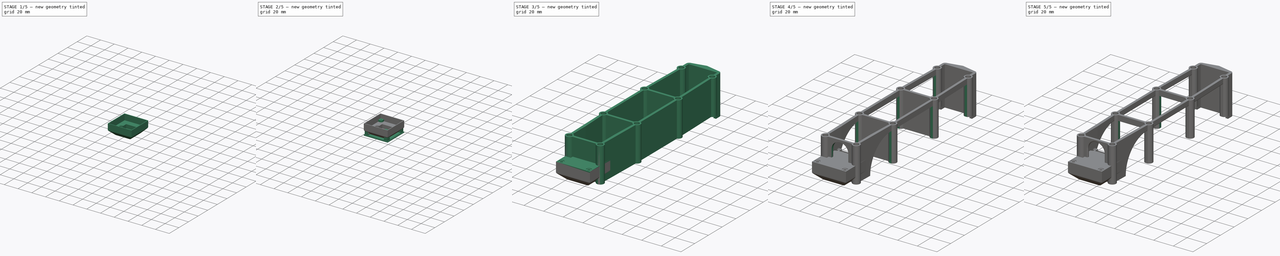
[diagram: build sequence overview — one tinted view per stage of 5, left to right]
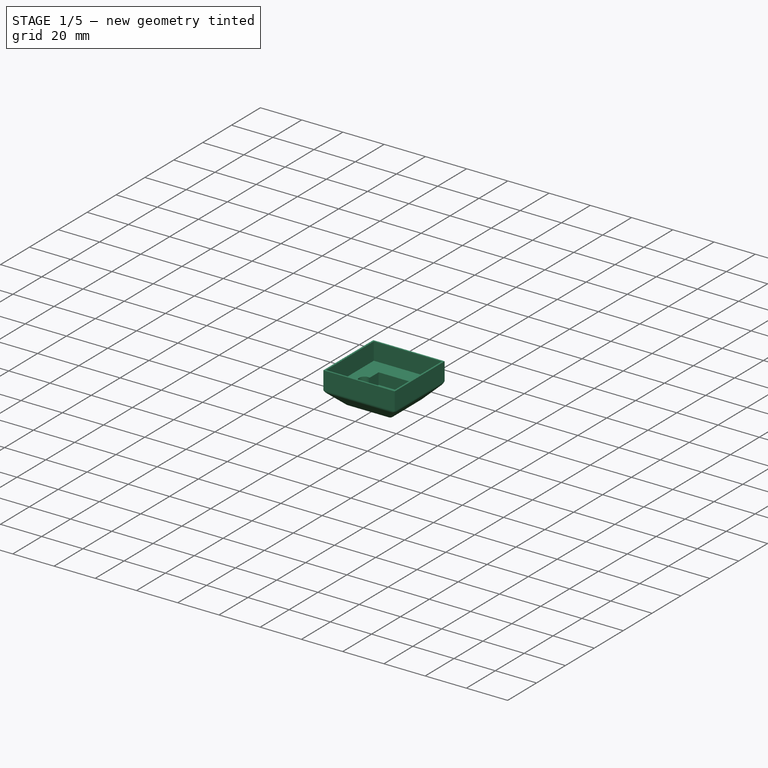
[diagram: stage 1 of 5 — iso view after this stage's code; geometry added in this stage tinted green]
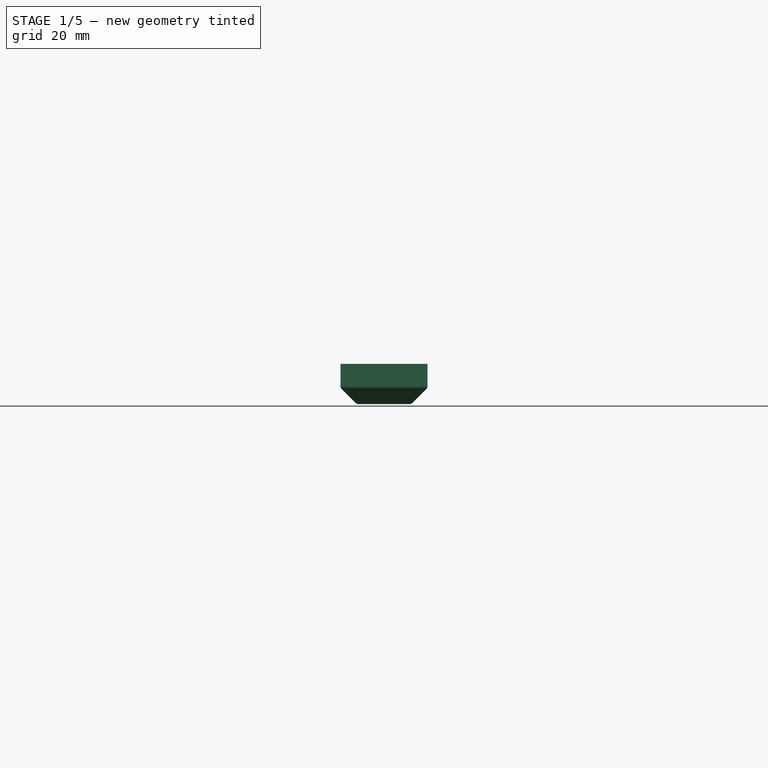
[diagram: stage 1 of 5 — front view after this stage's code; geometry added in this stage tinted green]
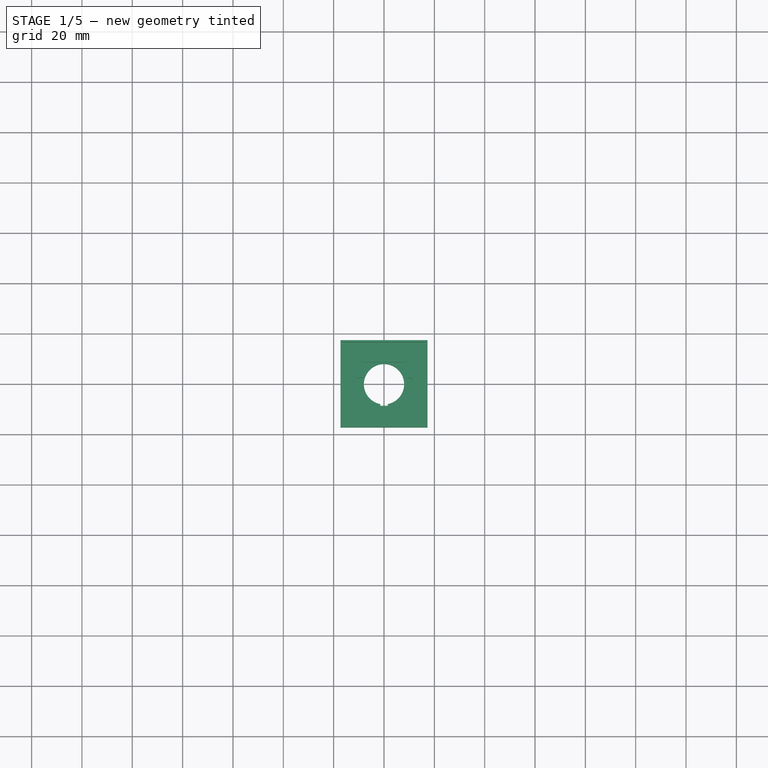
[diagram: stage 1 of 5 — top view after this stage's code; geometry added in this stage tinted green]
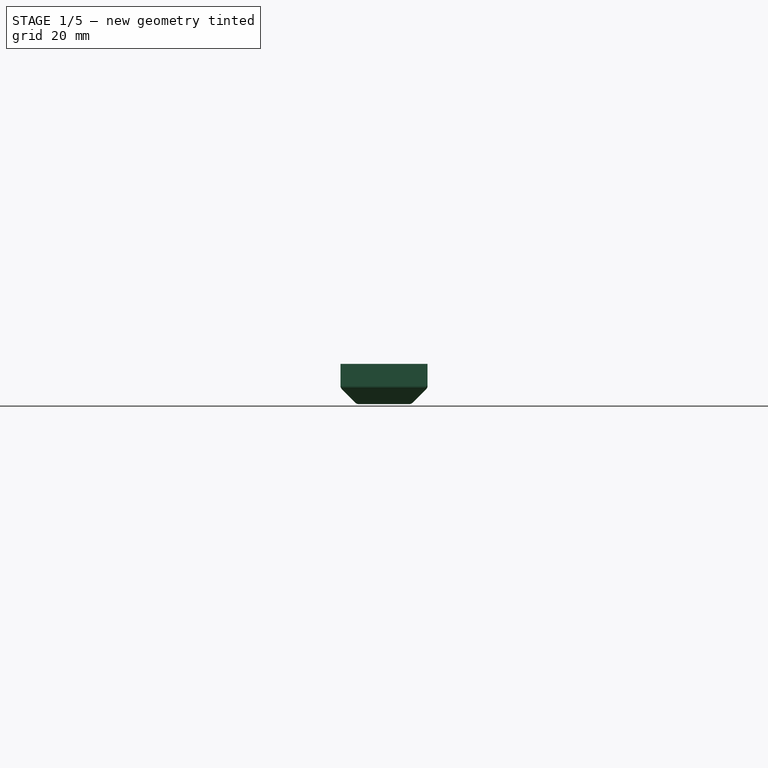
[diagram: stage 1 of 5 — right view after this stage's code; geometry added in this stage tinted green]
FCSTD DOCUMENT  (FreeCAD 0.16R6188 (Git))
Label: Bare framework
License: All rights reserved
LicenseURL: http://en.wikipedia.org/wiki/All_rights_reserved
objects: Sketcher::SketchObject×22, PartDesign::Pocket×16, PartDesign::Pad×7, App::DocumentObjectGroup×7, Part::FeaturePython×4, PartDesign::Fillet×3, Part::Fuse×1, PartDesign::Chamfer×1, Part::Part2DObjectPython×1
note: 78 computed .brp shape members not serialized (recipe doc carries the construction recipe); baked Part::Feature solids carry a one-line shape summary decoded from their .brp

FEATURE [Sketcher::SketchObject] Sketch014  label="Sk: Outer size"
  sketch-geometry (4):
    g0: LineSegment StartX=-17.3 StartY=-17.3 StartZ=0 EndX=17.3 EndY=-17.3 EndZ=0
    g1: LineSegment StartX=17.3 StartY=-17.3 StartZ=0 EndX=17.3 EndY=17.3 EndZ=0
    g2: LineSegment StartX=17.3 StartY=17.3 StartZ=0 EndX=-17.3 EndY=17.3 EndZ=0
    g3: LineSegment StartX=-17.3 StartY=17.3 StartZ=0 EndX=-17.3 EndY=-17.3 EndZ=0
  constraints (12):
    c: Coincident(g0,g1)
    c: Coincident(g1,g2)
    c: Coincident(g2,g3)
    c: Coincident(g3,g0)
    c: Horizontal(g0)
    c: Horizontal(g2)
    c: Vertical(g1)
    c: Vertical(g3)
    c: Equal(g1,g0)
    c: Symmetric(g1,g0,g-1)
    c: Symmetric(g0,g0,g-2)
    c: DistanceX(g0,g0) = 34.6
FEATURE [PartDesign::Pad] Pad002
  Length = 16
  Length2 = 100
  Sketch = -> Sketch014
  Type = 0
FEATURE [Sketcher::SketchObject] Sketch015
  Placement = pos=(0,0,16) rot=(0,0,1;0rad)
  Support = -> Pad002 [Face6]
  sketch-geometry (4):
    g0: LineSegment StartX=-16.5 StartY=-16.5 StartZ=0 EndX=16.5 EndY=-16.5 EndZ=0
    g1: LineSegment StartX=16.5 StartY=-16.5 StartZ=0 EndX=16.5 EndY=16.5 EndZ=0
    g2: LineSegment StartX=16.5 StartY=16.5 StartZ=0 EndX=-16.5 EndY=16.5 EndZ=0
    g3: LineSegment StartX=-16.5 StartY=16.5 StartZ=0 EndX=-16.5 EndY=-16.5 EndZ=0
  constraints (12):
    c: Coincident(g0,g1)
    c: Coincident(g1,g2)
    c: Coincident(g2,g3)
    c: Coincident(g3,g0)
    c: Horizontal(g0)
    c: Horizontal(g2)
    c: Vertical(g1)
    c: Vertical(g3)
    c: Symmetric(g1,g0,g-1)
    c: Symmetric(g0,g0,g-2)
    c: DistanceX(g0,g0) = 33
    c: Equal(g0,g1)
FEATURE [PartDesign::Pocket] Pocket011
  Length = 8.5
  Sketch = -> Sketch015
  Type = 0
FEATURE [PartDesign::Pocket] Pocket012
  Length = 5.5
  Sketch = -> Sketch016
  Type = 0
FEATURE [Sketcher::SketchObject] Sketch017
  Placement = pos=(0,0,2) rot=(0,0,1;0rad)
  Support = -> Pocket012 [Face20]
  sketch-geometry (4):
    g0: ArcOfCircle CenterX=0 CenterY=0 CenterZ=0 NormalX=0 NormalY=0 NormalZ=1 Radius=8 StartAngle=4.90101 EndAngle=10.807
    g1: LineSegment StartX=-1.5 StartY=-8.65 StartZ=0 EndX=1.5 EndY=-8.65 EndZ=0
    g2: LineSegment StartX=-1.5 StartY=-7.85812 StartZ=0 EndX=-1.5 EndY=-8.65 EndZ=0
    g3: LineSegment StartX=1.5 StartY=-7.85812 StartZ=0 EndX=1.5 EndY=-8.65 EndZ=0
  constraints (12):
    c: Coincident(g0,g-1)
    c: Radius(g0) = 8
    c: Horizontal(g1)
    c: Vertical(g2)
    c: Vertical(g3)
    c: Symmetric(g1,g1,g-2)
    c: DistanceX(g1,g1) = 3
    c: DistanceY(g-1,g1) = -8.65
    c: Coincident(g1,g2)
    c: Coincident(g0,g2)
    c: Coincident(g3,g1)
    c: Coincident(g0,g3)
FEATURE [PartDesign::Pocket] Pocket013  label="Bare camera holder"
  Length = 5
  Sketch = -> Sketch017
  Type = 2
FEATURE [App::DocumentObjectGroup] Group004  label="Gr: FrSky D4RII RX tray"
FEATURE [PartDesign::Chamfer] Chamfer
  Base = -> Pocket013 [Edge3,Edge6,Edge9,Edge11]
  Size = 6.5
FEATURE [PartDesign::Fillet] Fillet002
  Base = -> Chamfer [Edge23,Edge22,Edge28,Edge20,Edge21,Edge8,Edge9,Edge10,Edge6,Edge19,Edge17,Edge2]
  Radius = 2
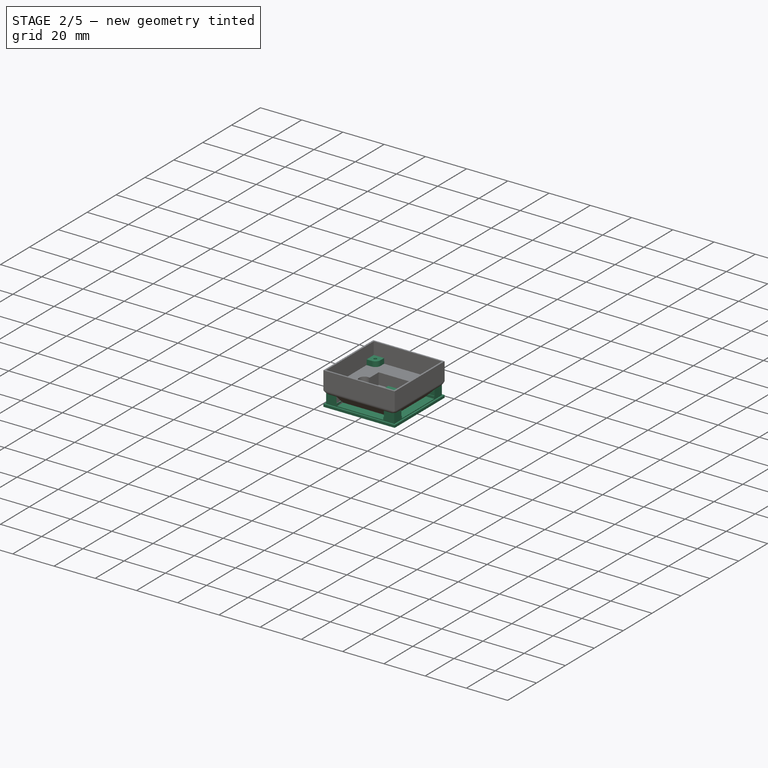
[diagram: stage 2 of 5 — iso view after this stage's code; geometry added in this stage tinted green]
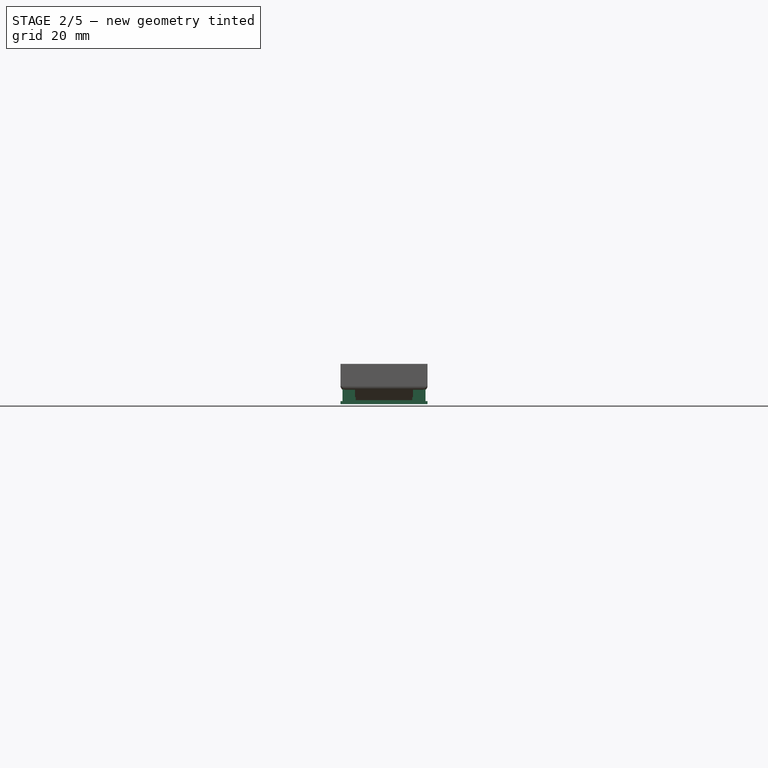
[diagram: stage 2 of 5 — front view after this stage's code; geometry added in this stage tinted green]
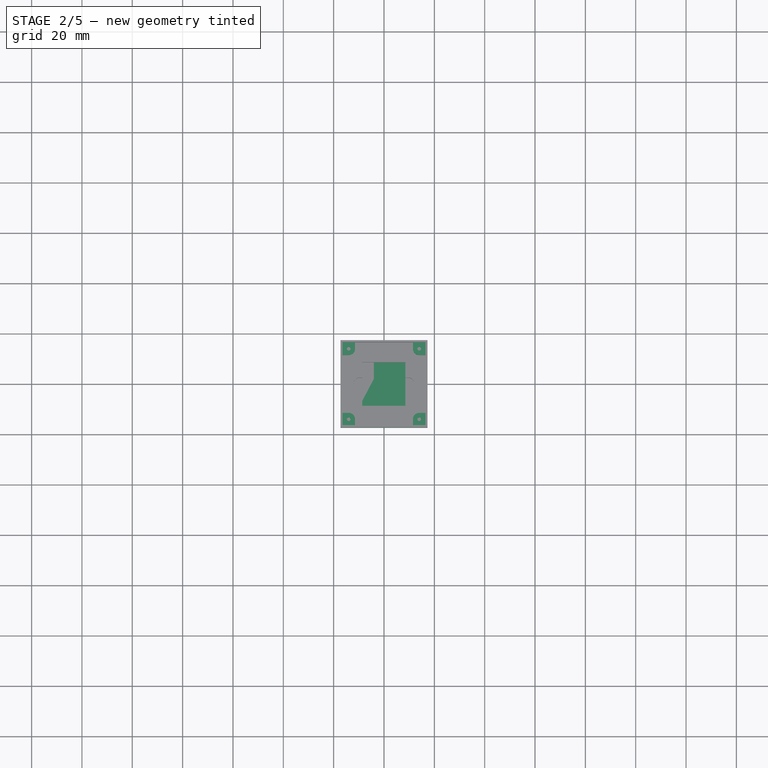
[diagram: stage 2 of 5 — top view after this stage's code; geometry added in this stage tinted green]
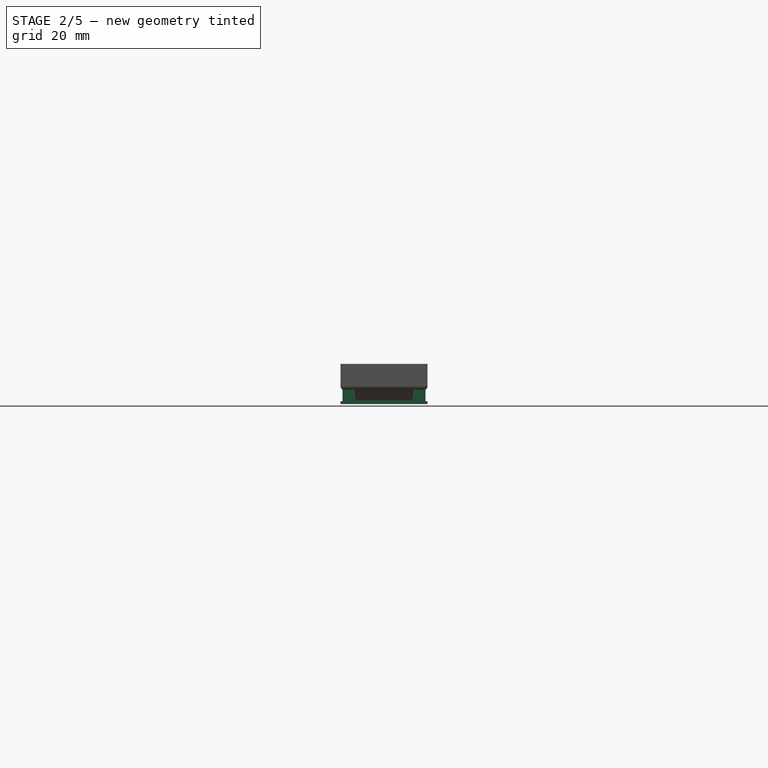
[diagram: stage 2 of 5 — right view after this stage's code; geometry added in this stage tinted green]
FEATURE [Sketcher::SketchObject] Sketch018
  Placement = pos=(0,0,7.5) rot=(0,0,1;0rad)
  Support = -> Fillet002 [Face22]
  sketch-geometry (32):
    g0: LineSegment [constr] StartX=-14 StartY=14 StartZ=0 EndX=14 EndY=14 EndZ=0
    g1: LineSegment [constr] StartX=14 StartY=14 StartZ=0 EndX=14 EndY=-14 EndZ=0
    g2: LineSegment [constr] StartX=14 StartY=-14 StartZ=0 EndX=-14 EndY=-14 EndZ=0
    g3: LineSegment [constr] StartX=-14 StartY=-14 StartZ=0 EndX=-14 EndY=14 EndZ=0
    g4: Circle CenterX=-14 CenterY=-14 CenterZ=0 NormalX=0 NormalY=0 NormalZ=1 Radius=0.75
    g5: Circle CenterX=-14 CenterY=14 CenterZ=0 NormalX=0 NormalY=0 NormalZ=1 Radius=0.75
    g6: Circle CenterX=14 CenterY=14 CenterZ=0 NormalX=0 NormalY=0 NormalZ=1 Radius=0.75
    g7: Circle CenterX=14 CenterY=-14 CenterZ=0 NormalX=0 NormalY=0 NormalZ=1 Radius=0.75
    g8: LineSegment [constr] StartX=-16.5 StartY=16.5 StartZ=0 EndX=16.5 EndY=16.5 EndZ=0
    g9: LineSegment [constr] StartX=16.5 StartY=16.5 StartZ=0 EndX=16.5 EndY=-16.5 EndZ=0
    g10: LineSegment [constr] StartX=16.5 StartY=-16.5 StartZ=0 EndX=-16.5 EndY=-16.5 EndZ=0
    g11: LineSegment [constr] StartX=-16.5 StartY=-16.5 StartZ=0 EndX=-16.5 EndY=16.5 EndZ=0
    g12: LineSegment StartX=-16.5 StartY=16.5 StartZ=0 EndX=-11.5 EndY=16.5 EndZ=0
    g13: LineSegment StartX=-16.5 StartY=16.5 StartZ=0 EndX=-16.5 EndY=11.5 EndZ=0
    g14: LineSegment StartX=11.5 StartY=16.5 StartZ=0 EndX=16.5 EndY=16.5 EndZ=0
    g15: LineSegment StartX=16.5 StartY=16.5 StartZ=0 EndX=16.5 EndY=11.5 EndZ=0
    g16: LineSegment StartX=16.5 StartY=-11.5 StartZ=0 EndX=16.5 EndY=-16.5 EndZ=0
    g17: LineSegment StartX=16.5 StartY=-16.5 StartZ=0 EndX=11.5 EndY=-16.5 EndZ=0
    g18: LineSegment StartX=-16.5 StartY=-11.5 StartZ=0 EndX=-16.5 EndY=-16.5 EndZ=0
    g19: LineSegment StartX=-16.5 StartY=-16.5 StartZ=0 EndX=-11.5 EndY=-16.5 EndZ=0
    g20: ArcOfCircle CenterX=-14 CenterY=-14 CenterZ=0 NormalX=0 NormalY=0 NormalZ=1 Radius=2.5 StartAngle=0 EndAngle=1.5708
    g21: LineSegment StartX=-16.5 StartY=-11.5 StartZ=0 EndX=-14 EndY=-11.5 EndZ=0
    g22: LineSegment StartX=-11.5 StartY=-14 StartZ=0 EndX=-11.5 EndY=-16.5 EndZ=0
    g23: ArcOfCircle CenterX=-14 CenterY=14 CenterZ=0 NormalX=0 NormalY=0 NormalZ=1 Radius=2.5 StartAngle=4.71239 EndAngle=6.28319
    g24: ArcOfCircle CenterX=14 CenterY=14 CenterZ=0 NormalX=0 NormalY=0 NormalZ=1 Radius=2.5 StartAngle=3.14159 EndAngle=4.71239
    g25: ArcOfCircle CenterX=14 CenterY=-14 CenterZ=0 NormalX=0 NormalY=0 NormalZ=1 Radius=2.5 StartAngle=1.5708 EndAngle=3.14159
    g26: LineSegment StartX=14 StartY=-11.5 StartZ=0 EndX=16.5 EndY=-11.5 EndZ=0
    g27: LineSegment StartX=11.5 StartY=-14 StartZ=0 EndX=11.5 EndY=-16.5 EndZ=0
    g28: LineSegment StartX=11.5 StartY=16.5 StartZ=0 EndX=11.5 EndY=14 EndZ=0
    g29: LineSegment StartX=16.5 StartY=11.5 StartZ=0 EndX=14 EndY=11.5 EndZ=0
    g30: LineSegment StartX=-11.5 StartY=16.5 StartZ=0 EndX=-11.5 EndY=14 EndZ=0
    g31: LineSegment StartX=-14 StartY=11.5 StartZ=0 EndX=-16.5 EndY=11.5 EndZ=0
  constraints (88):
    c: Coincident(g0,g1)
    c: Coincident(g1,g2)
    c: Coincident(g2,g3)
    c: Coincident(g3,g0)
    c: Horizontal(g0)
    c: Horizontal(g2)
    c: Vertical(g1)
    c: Vertical(g3)
    c: Symmetric(g2,g1,g-2)
    c: Symmetric(g1,g0,g-1)
    c: Equal(g1,g2)
    c: DistanceX(g2,g1) = 28
    c: Coincident(g4,g2)
    c: Coincident(g5,g0)
    c: Coincident(g6,g0)
    c: Coincident(g7,g1)
    c: Equal(g4,g7)
    c: Equal(g7,g6)
    c: Equal(g6,g5)
    c: Radius(g4) = 0.75
    c: Coincident(g8,g9)
    c: Coincident(g9,g10)
    c: Coincident(g11,g8)
    c: Horizontal(g8)
    c: Horizontal(g10)
    c: Vertical(g9)
    c: Vertical(g11)
    c: Symmetric(g10,g9,g-2)
    c: Symmetric(g8,g9,g-1)
    c: Equal(g10,g9)
    c: DistanceX(g10,g9) = 33
    c: Coincident(g13,g12)
    c: Coincident(g12,g8)
    c: Coincident(g14,g15)
    c: Coincident(g14,g8)
    c: Coincident(g16,g17)
    c: Coincident(g16,g9)
    c: Coincident(g18,g19)
    c: Coincident(g11,g10)
    c: Coincident(g11,g18)
    c: Coincident(g20,g2)
    c: Radius(g20) = 2.5
    c: Horizontal(g21)
    c: Vertical(g22)
    c: Coincident(g21,g20)
    c: Coincident(g22,g20)
    c: Coincident(g18,g21)
    c: Coincident(g19,g22)
    c: Coincident(g23,g0)
    c: Coincident(g24,g0)
    c: Coincident(g25,g1)
    c: Equal(g20,g25)
    c: Equal(g25,g24)
    c: Equal(g24,g23)
    c: Horizontal(g26)
    c: Vertical(g27)
    c: Coincident(g25,g27)
    c: Coincident(g26,g25)
    c: Coincident(g26,g16)
    c: Coincident(g27,g17)
    c: Vertical(g28)
    c: Horizontal(g29)
    c: Coincident(g24,g28)
    c: Coincident(g24,g29)
    c: Coincident(g29,g15)
    c: Coincident(g28,g14)
    c: Vertical(g30)
    c: Horizontal(g31)
    c: Coincident(g31,g13)
    c: Coincident(g31,g23)
    c: Coincident(g23,g30)
    c: Coincident(g30,g12)
    c: PointOnObject(g23,g0)
    c: PointOnObject(g23,g3)
    c: Horizontal(g12)
    c: Vertical(g13)
    c: PointOnObject(g20,g3)
    c: PointOnObject(g20,g2)
    c: Vertical(g18)
    c: Horizontal(g19)
    c: PointOnObject(g25,g1)
    c: PointOnObject(g25,g2)
    c: Horizontal(g17)
    c: Vertical(g16)
    c: PointOnObject(g24,g0)
    c: PointOnObject(g24,g1)
    c: Horizontal(g14)
    c: Vertical(g15)
FEATURE [PartDesign::Pad] Pad003  label="Camera holder front"
  Length = 2.5
  Length2 = 100
  Sketch = -> Sketch018
  Type = 0
FEATURE [App::DocumentObjectGroup] Group005  label="Gr: Camera holder front"
  Group = -> [Pad002,Pocket011,Pocket012,Pocket013,Chamfer,Fillet002,Pad003]
FEATURE [Part::Part2DObjectPython] Clone2D  label="Clone of Sk: Outer size (2D)"  # Draft 2D object (typed FeaturePython)
  Objects = -> [Sketch014]
  Scale = (1,1,1)
FEATURE [PartDesign::Pad] Pad004
  Length = 1.2
  Length2 = 100
  Sketch = -> Clone2D
  Type = 0
FEATURE [Sketcher::SketchObject] Sketch019
  Placement = pos=(0,0,1.2) rot=(0,0,1;0rad)
  Support = -> Pad004 [Face6]
  sketch-geometry (4):
    g0: LineSegment StartX=-16.5 StartY=16.5 StartZ=0 EndX=16.5 EndY=16.5 EndZ=0
    g1: LineSegment StartX=16.5 StartY=16.5 StartZ=0 EndX=16.5 EndY=-16.5 EndZ=0
    g2: LineSegment StartX=16.5 StartY=-16.5 StartZ=0 EndX=-16.5 EndY=-16.5 EndZ=0
    g3: LineSegment StartX=-16.5 StartY=-16.5 StartZ=0 EndX=-16.5 EndY=16.5 EndZ=0
  constraints (12):
    c: Coincident(g0,g1)
    c: Coincident(g1,g2)
    c: Coincident(g2,g3)
    c: Coincident(g3,g0)
    c: Horizontal(g0)
    c: Horizontal(g2)
    c: Vertical(g1)
    c: Vertical(g3)
    c: Symmetric(g2,g1,g-2)
    c: Symmetric(g0,g1,g-1)
    c: Equal(g2,g1)
    c: DistanceX(g2,g1) = 33
FEATURE [PartDesign::Pad] Pad005
  Length = 1.6
  Length2 = 100
  Sketch = -> Sketch019
  Type = 0
FEATURE [Sketcher::SketchObject] Sketch020
  Placement = pos=(0,0,2.8) rot=(0,0,1;0rad)
  Support = -> Pad005 [Face11]
  sketch-geometry (28):
    g0: LineSegment [constr] StartX=-16.5 StartY=16.5 StartZ=0 EndX=16.5 EndY=16.5 EndZ=0
    g1: LineSegment [constr] StartX=16.5 StartY=16.5 StartZ=0 EndX=16.5 EndY=-16.5 EndZ=0
    g2: LineSegment [constr] StartX=16.5 StartY=-16.5 StartZ=0 EndX=-16.5 EndY=-16.5 EndZ=0
    g3: LineSegment [constr] StartX=-16.5 StartY=-16.5 StartZ=0 EndX=-16.5 EndY=16.5 EndZ=0
    g4: LineSegment [constr] StartX=-14 StartY=14 StartZ=0 EndX=14 EndY=14 EndZ=0
    g5: LineSegment [constr] StartX=14 StartY=14 StartZ=0 EndX=14 EndY=-14 EndZ=0
    g6: LineSegment [constr] StartX=14 StartY=-14 StartZ=0 EndX=-14 EndY=-14 EndZ=0
    g7: LineSegment [constr] StartX=-14 StartY=-14 StartZ=0 EndX=-14 EndY=14 EndZ=0
    g8: ArcOfCircle CenterX=-14 CenterY=14 CenterZ=0 NormalX=0 NormalY=0 NormalZ=1 Radius=2.5 StartAngle=4.71239 EndAngle=6.28319
    g9: ArcOfCircle CenterX=14 CenterY=14 CenterZ=0 NormalX=0 NormalY=0 NormalZ=1 Radius=2.5 StartAngle=3.14159 EndAngle=4.71239
    g10: ArcOfCircle CenterX=-14 CenterY=-14 CenterZ=0 NormalX=0 NormalY=0 NormalZ=1 Radius=2.5 StartAngle=0 EndAngle=1.5708
    g11: ArcOfCircle CenterX=14 CenterY=-14 CenterZ=0 NormalX=0 NormalY=0 NormalZ=1 Radius=2.5 StartAngle=1.5708 EndAngle=3.14159
    g12: LineSegment StartX=-11.5 StartY=16.5 StartZ=0 EndX=-16.5 EndY=16.5 EndZ=0
    g13: LineSegment StartX=-16.5 StartY=16.5 StartZ=0 EndX=-16.5 EndY=11.5 EndZ=0
    g14: LineSegment StartX=-16.5 StartY=11.5 StartZ=0 EndX=-14 EndY=11.5 EndZ=0
    g15: LineSegment StartX=14 StartY=11.5 StartZ=0 EndX=16.5 EndY=11.5 EndZ=0
    g16: LineSegment StartX=16.5 StartY=11.5 StartZ=0 EndX=16.5 EndY=16.5 EndZ=0
    g17: LineSegment StartX=16.5 StartY=16.5 StartZ=0 EndX=11.5 EndY=16.5 EndZ=0
    g18: LineSegment StartX=11.5 StartY=16.5 StartZ=0 EndX=11.5 EndY=14 EndZ=0
    g19: LineSegment StartX=-11.5 StartY=-14 StartZ=0 EndX=-11.5 EndY=-16.5 EndZ=0
    g20: LineSegment StartX=-11.5 StartY=-16.5 StartZ=0 EndX=-16.5 EndY=-16.5 EndZ=0
    g21: LineSegment StartX=-16.5 StartY=-16.5 StartZ=0 EndX=-16.5 EndY=-11.5 EndZ=0
    g22: LineSegment StartX=-16.5 StartY=-11.5 StartZ=0 EndX=-14 EndY=-11.5 EndZ=0
    g23: LineSegment StartX=11.5 StartY=-14 StartZ=0 EndX=11.5 EndY=-16.5 EndZ=0
    g24: LineSegment StartX=11.5 StartY=-16.5 StartZ=0 EndX=16.5 EndY=-16.5 EndZ=0
    g25: LineSegment StartX=16.5 StartY=-16.5 StartZ=0 EndX=16.5 EndY=-11.5 EndZ=0
    g26: LineSegment StartX=16.5 StartY=-11.5 StartZ=0 EndX=14 EndY=-11.5 EndZ=0
    g27: LineSegment StartX=-11.5 StartY=16.5 StartZ=0 EndX=-11.5 EndY=14 EndZ=0
  constraints (80):
    c: Coincident(g0,g1)
    c: Coincident(g1,g2)
    c: Coincident(g2,g3)
    c: Coincident(g3,g0)
    c: Horizontal(g0)
    c: Horizontal(g2)
    c: Vertical(g1)
    c: Vertical(g3)
    c: Coincident(g4,g5)
    c: Coincident(g5,g6)
    c: Coincident(g6,g7)
    c: Coincident(g7,g4)
    c: Horizontal(g4)
    c: Horizontal(g6)
    c: Vertical(g5)
    c: Vertical(g7)
    c: Equal(g2,g1)
    c: Equal(g6,g5)
    c: Symmetric(g2,g1,g-2)
    c: Symmetric(g6,g5,g-2)
    c: Symmetric(g1,g0,g-1)
    c: Symmetric(g5,g4,g-1)
    c: DistanceX(g2,g1) = 33
    c: DistanceX(g6,g5) = 28
    c: Coincident(g8,g4)
    c: Coincident(g9,g4)
    c: Coincident(g10,g6)
    c: Coincident(g11,g5)
    c: Equal(g10,g11)
    c: Equal(g11,g9)
    c: Equal(g9,g8)
    c: Radius(g10) = 2.5
    c: Coincident(g12,g13)
    c: Coincident(g13,g14)
    c: Coincident(g15,g16)
    c: Coincident(g16,g17)
    c: Coincident(g17,g18)
    c: Vertical(g18)
    c: Vertical(g19)
    c: Coincident(g19,g20)
    c: Coincident(g20,g21)
    c: Coincident(g21,g22)
    c: Horizontal(g22)
    c: Vertical(g23)
    c: Coincident(g23,g24)
    c: Coincident(g24,g25)
    c: Coincident(g25,g26)
    c: Horizontal(g26)
    c: Vertical(g27)
    c: Coincident(g12,g27)
    c: Coincident(g27,g8)
    c: Coincident(g14,g8)
    c: Coincident(g12,g0)
    c: Coincident(g16,g0)
    c: Coincident(g18,g9)
    c: Coincident(g9,g15)
    c: PointOnObject(g8,g7)
    c: PointOnObject(g8,g4)
    c: PointOnObject(g9,g4)
    c: PointOnObject(g9,g5)
    c: Coincident(g22,g10)
    c: PointOnObject(g10,g7)
    c: Coincident(g19,g10)
    c: PointOnObject(g10,g6)
    c: Coincident(g11,g26)
    c: PointOnObject(g11,g5)
    c: Coincident(g11,g23)
    c: PointOnObject(g11,g6)
    c: Horizontal(g14)
    c: Horizontal(g15)
    c: Coincident(g2,g20)
    c: Coincident(g1,g24)
    c: Horizontal(g12)
    c: Horizontal(g17)
    c: Horizontal(g24)
    c: Horizontal(g20)
    c: Vertical(g13)
    c: Vertical(g21)
    c: Vertical(g25)
    c: Vertical(g16)
FEATURE [PartDesign::Pad] Pad006
  Length = 3.3
  Length2 = 100
  Sketch = -> Sketch020
  Type = 0
FEATURE [Sketcher::SketchObject] Sketch021  label="Sk: Extra room for components"
  Placement = pos=(0,0,2.8) rot=(0,0,1;0rad)
  Support = -> Pad006 [Face12]
  sketch-geometry (16):
    g0: LineSegment [constr] StartX=-14 StartY=14 StartZ=0 EndX=14 EndY=14 EndZ=0
    g1: LineSegment [constr] StartX=14 StartY=14 StartZ=0 EndX=14 EndY=-14 EndZ=0
    g2: LineSegment [constr] StartX=14 StartY=-14 StartZ=0 EndX=-14 EndY=-14 EndZ=0
    g3: LineSegment [constr] StartX=-14 StartY=-14 StartZ=0 EndX=-14 EndY=14 EndZ=0
    g4: LineSegment StartX=8.5 StartY=11.2 StartZ=0 EndX=16.5 EndY=11.2 EndZ=0
    g5: LineSegment StartX=16.5 StartY=11.2 StartZ=0 EndX=16.5 EndY=-11.2 EndZ=0
    g6: LineSegment StartX=16.5 StartY=-11.2 StartZ=0 EndX=8.5 EndY=-11.2 EndZ=0
    g7: LineSegment StartX=8.5 StartY=-11.2 StartZ=0 EndX=8.5 EndY=11.2 EndZ=0
    g8: LineSegment StartX=-11.2 StartY=-11.5 StartZ=0 EndX=11.2 EndY=-11.5 EndZ=0
    g9: LineSegment StartX=11.2 StartY=-11.5 StartZ=0 EndX=11.2 EndY=-16.5 EndZ=0
    g10: LineSegment StartX=11.2 StartY=-16.5 StartZ=0 EndX=-11.2 EndY=-16.5 EndZ=0
    g11: LineSegment StartX=-11.2 StartY=-16.5 StartZ=0 EndX=-11.2 EndY=-11.5 EndZ=0
    g12: LineSegment StartX=-14 StartY=11.2 StartZ=0 EndX=-4 EndY=11.2 EndZ=0
    g13: LineSegment StartX=-4 StartY=11.2 StartZ=0 EndX=-4 EndY=2.2 EndZ=0
    g14: LineSegment StartX=-4 StartY=2.2 StartZ=0 EndX=-14 EndY=2.2 EndZ=0
    g15: LineSegment StartX=-14 StartY=2.2 StartZ=0 EndX=-14 EndY=11.2 EndZ=0
  constraints (48):
    c: Coincident(g0,g1)
    c: Coincident(g1,g2)
    c: Coincident(g2,g3)
    c: Coincident(g3,g0)
    c: Horizontal(g0)
    c: Horizontal(g2)
    c: Vertical(g1)
    c: Vertical(g3)
    c: DistanceX(g2,g1) = 28
    c: Symmetric(g2,g1,g-2)
    c: Symmetric(g0,g1,g-1)
    c: Equal(g2,g1)
    c: Coincident(g4,g5)
    c: Coincident(g5,g6)
    c: Coincident(g6,g7)
    c: Coincident(g7,g4)
    c: Horizontal(g4)
    c: Horizontal(g6)
    c: Vertical(g5)
    c: Vertical(g7)
    c: DistanceX(g6,g5) = 8
    c: Distance(g4,g1) = 2.5
    c: Coincident(g8,g9)
    c: Coincident(g9,g10)
    c: Coincident(g10,g11)
    c: Coincident(g11,g8)
    c: Horizontal(g8)
    c: Horizontal(g10)
    c: Vertical(g9)
    c: Vertical(g11)
    c: Distance(g8,g3) = 2.8
    c: Distance(g8,g1) = 2.8
    c: Distance(g4,g0) = 2.8
    c: DistanceY(g8,g10) = -5
    c: Distance(g9,g2) = 2.5
    c: Coincident(g12,g13)
    c: Coincident(g13,g14)
    c: Coincident(g14,g15)
    c: Coincident(g15,g12)
    c: Horizontal(g12)
    c: Horizontal(g14)
    c: Vertical(g13)
    c: Vertical(g15)
    c: PointOnObject(g12,g3)
    c: DistanceX(g14,g13) = 10
    c: DistanceY(g12,g13) = -9
    c: Distance(g12,g0) = 2.8
    c: Distance(g6,g2) = 2.8
FEATURE [PartDesign::Pocket] Pocket014
  Length = 1.2
  Sketch = -> Sketch021
  Type = 0
FEATURE [Sketcher::SketchObject] Sketch022  label="Sk: Skrewheads lay deeper"
  Placement = pos=(0,0,0) rot=(1,0,0;3.14159rad)
  Support = -> Pocket014 [Face4]
  sketch-geometry (8):
    g0: LineSegment [constr] StartX=-14 StartY=14 StartZ=0 EndX=14 EndY=14 EndZ=0
    g1: LineSegment [constr] StartX=14 StartY=14 StartZ=0 EndX=14 EndY=-14 EndZ=0
    g2: LineSegment [constr] StartX=14 StartY=-14 StartZ=0 EndX=-14 EndY=-14 EndZ=0
    g3: LineSegment [constr] StartX=-14 StartY=-14 StartZ=0 EndX=-14 EndY=14 EndZ=0
    g4: Circle CenterX=-14 CenterY=14 CenterZ=0 NormalX=0 NormalY=0 NormalZ=1 Radius=2.5
    g5: Circle CenterX=14 CenterY=14 CenterZ=0 NormalX=0 NormalY=0 NormalZ=1 Radius=2.5
    g6: Circle CenterX=-14 CenterY=-14 CenterZ=0 NormalX=0 NormalY=0 NormalZ=1 Radius=2.5
    g7: Circle CenterX=14 CenterY=-14 CenterZ=0 NormalX=0 NormalY=0 NormalZ=1 Radius=2.5
  constraints (20):
    c: Coincident(g0,g1)
    c: Coincident(g1,g2)
    c: Coincident(g2,g3)
    c: Coincident(g3,g0)
    c: Horizontal(g0)
    c: Horizontal(g2)
    c: Vertical(g1)
    c: Vertical(g3)
    c: DistanceX(g2,g1) = 28
    c: Equal(g1,g2)
    c: Symmetric(g2,g1,g-2)
    c: Symmetric(g0,g1,g-1)
    c: Coincident(g4,g0)
    c: Coincident(g5,g0)
    c: Coincident(g6,g2)
    c: Coincident(g7,g1)
    c: Equal(g4,g5)
    c: Equal(g5,g7)
    c: Equal(g7,g6)
    c: Radius(g6) = 2.5
FEATURE [PartDesign::Pocket] Pocket015
  Length = 0.5
  Sketch = -> Sketch022
  Type = 0
FEATURE [Part::FeaturePython] Clone003  label="Clone of Camera holder front"  # Draft clone (typed FeaturePython)
  Objects = -> [Pad003]
  Scale = (1,1,1)
FEATURE [App::DocumentObjectGroup] Group002  label="Assembled all together"
  Group = -> [Fusion,Clone002,Clone003]
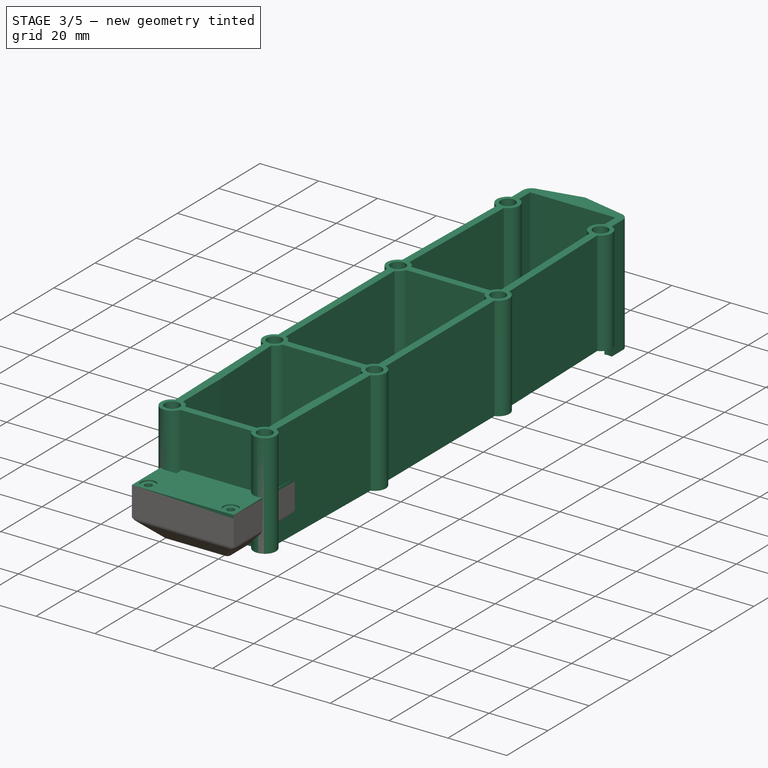
[diagram: stage 3 of 5 — iso view after this stage's code; geometry added in this stage tinted green]
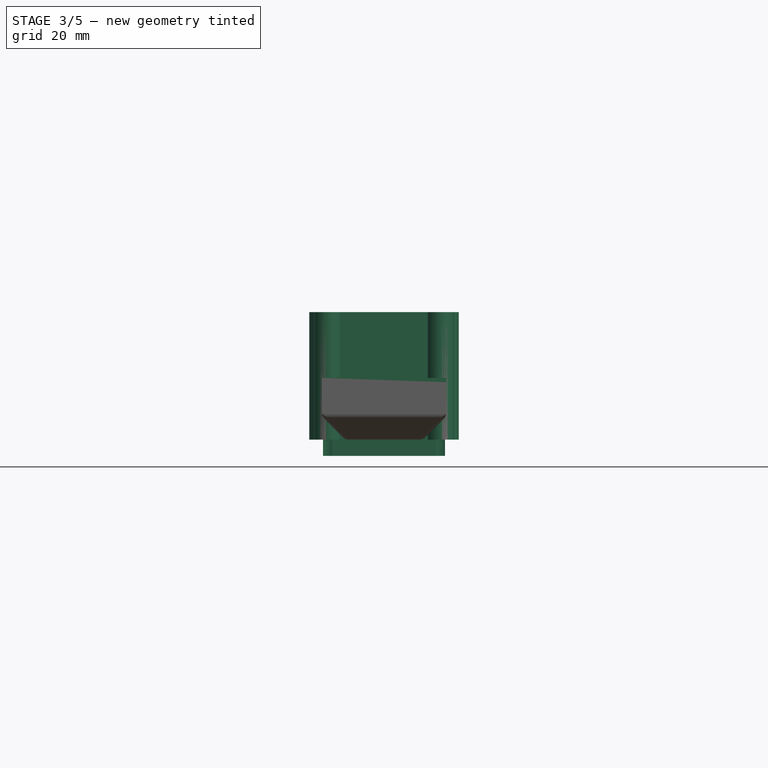
[diagram: stage 3 of 5 — front view after this stage's code; geometry added in this stage tinted green]
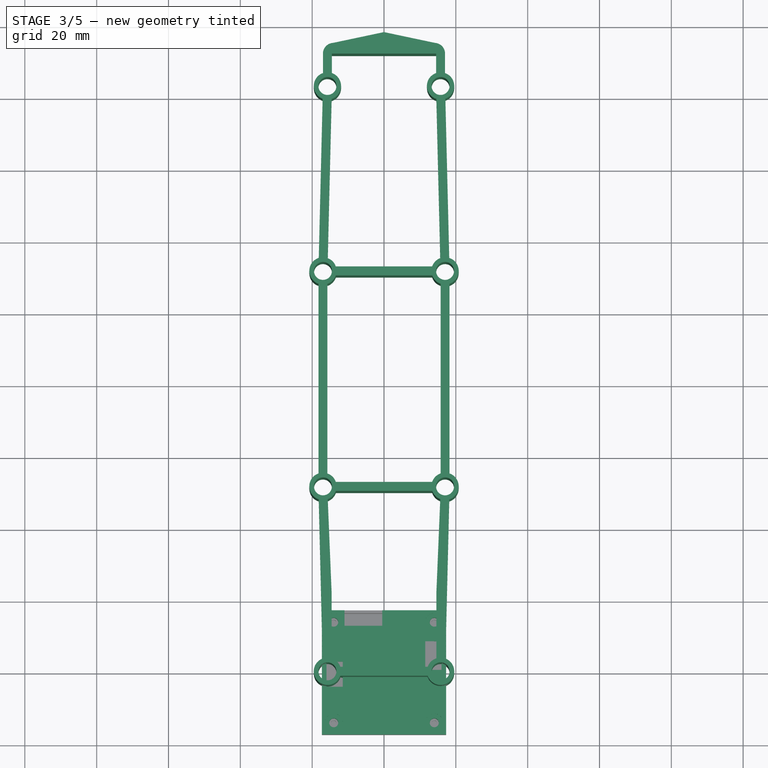
[diagram: stage 3 of 5 — top view after this stage's code; geometry added in this stage tinted green]
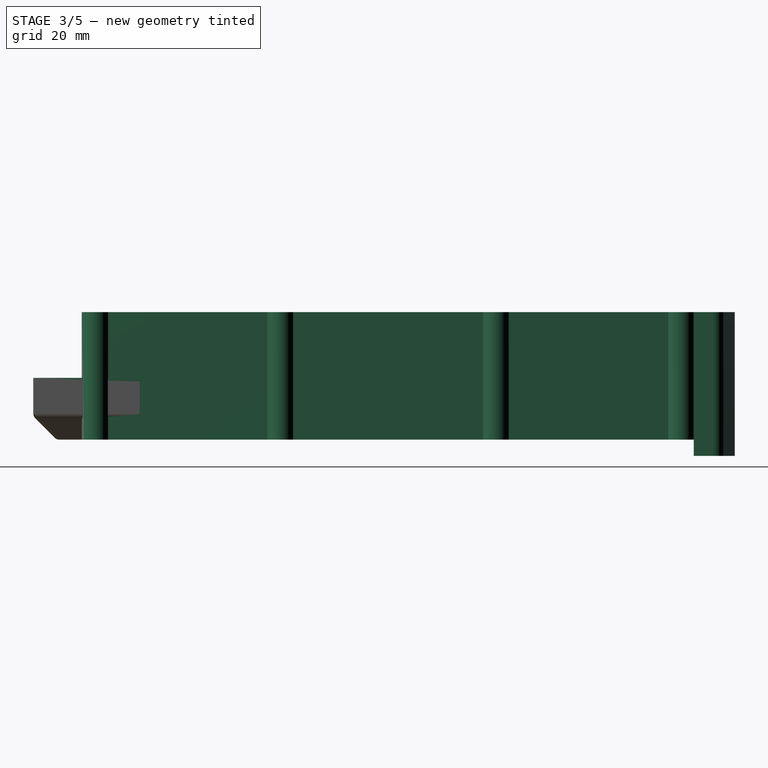
[diagram: stage 3 of 5 — right view after this stage's code; geometry added in this stage tinted green]
FEATURE [Sketcher::SketchObject] Sketch
  sketch-geometry (61):
    g0: Circle CenterX=-15.75 CenterY=0 CenterZ=0 NormalX=0 NormalY=0 NormalZ=1 Radius=2.5
    g1: ArcOfCircle CenterX=-15.75 CenterY=0 CenterZ=0 NormalX=0 NormalY=0 NormalZ=1 Radius=3.8 StartAngle=0.335189 EndAngle=1.25977
    g2: Circle CenterX=15.75 CenterY=0 CenterZ=0 NormalX=0 NormalY=0 NormalZ=1 Radius=2.5
    g3: ArcOfCircle CenterX=15.75 CenterY=0 CenterZ=0 NormalX=0 NormalY=0 NormalZ=1 Radius=3.8 StartAngle=3.47678 EndAngle=7.49442
    g4: Circle CenterX=-17 CenterY=51.5 CenterZ=0 NormalX=0 NormalY=0 NormalZ=1 Radius=2.5
    g5: ArcOfCircle CenterX=-17 CenterY=51.5 CenterZ=0 NormalX=0 NormalY=0 NormalZ=1 Radius=3.8 StartAngle=5.07195 EndAngle=5.948
    g6: Circle CenterX=17 CenterY=51.5 CenterZ=0 NormalX=0 NormalY=0 NormalZ=1 Radius=2.5
    g7: ArcOfCircle CenterX=17 CenterY=51.5 CenterZ=0 NormalX=0 NormalY=0 NormalZ=1 Radius=3.8 StartAngle=5.02341 EndAngle=7.51879
    g8: LineSegment StartX=-18.1629 StartY=47.8823 StartZ=0 EndX=-17.0871 EndY=3.557 EndZ=0
    g9: LineSegment StartX=18.1629 StartY=47.8823 StartZ=0 EndX=17.0871 EndY=3.557 EndZ=0
    g10: ArcOfCircle CenterX=15.75 CenterY=0 CenterZ=0 NormalX=0 NormalY=0 NormalZ=1 Radius=3.8 StartAngle=1.88182 EndAngle=2.8064
    g11: ArcOfCircle CenterX=-15.75 CenterY=0 CenterZ=0 NormalX=0 NormalY=0 NormalZ=1 Radius=3.8 StartAngle=1.93035 EndAngle=5.948
    g12: LineSegment StartX=-12.1615 StartY=1.25 StartZ=0 EndX=12.1615 EndY=1.25 EndZ=0
    g13: LineSegment StartX=-12.1615 StartY=-1.25 StartZ=0 EndX=12.1615 EndY=-1.25 EndZ=0
    g14: LineSegment [constr] StartX=-15.75 StartY=0 StartZ=0 EndX=-17 EndY=51.5 EndZ=0
    g15: LineSegment [constr] StartX=17 StartY=51.5 StartZ=0 EndX=15.75 EndY=0 EndZ=0
    g16: Circle CenterX=-17 CenterY=111.5 CenterZ=0 NormalX=0 NormalY=0 NormalZ=1 Radius=2.5
    g17: ArcOfCircle CenterX=-17 CenterY=111.5 CenterZ=0 NormalX=0 NormalY=0 NormalZ=1 Radius=3.8 StartAngle=5.04758 EndAngle=5.948
    g18: Circle CenterX=17 CenterY=111.5 CenterZ=0 NormalX=0 NormalY=0 NormalZ=1 Radius=2.5
    g19: ArcOfCircle CenterX=17 CenterY=111.5 CenterZ=0 NormalX=0 NormalY=0 NormalZ=1 Radius=3.8 StartAngle=5.04758 EndAngle=7.54296
    g20: GeomPoint [constr] X=0 Y=111.5 Z=0
    g21: LineSegment StartX=-18.25 StartY=107.911 StartZ=0 EndX=-18.25 EndY=55.0885 EndZ=0
    g22: LineSegment StartX=-15.75 StartY=107.911 StartZ=0 EndX=-15.75 EndY=55.0885 EndZ=0
    g23: LineSegment StartX=15.75 StartY=107.911 StartZ=0 EndX=15.75 EndY=55.0885 EndZ=0
    g24: LineSegment StartX=18.25 StartY=107.911 StartZ=0 EndX=18.25 EndY=55.0885 EndZ=0
    g25: LineSegment [constr] StartX=-17 StartY=111.5 StartZ=0 EndX=-17 EndY=51.5 EndZ=0
    g26: LineSegment [constr] StartX=17 StartY=111.5 StartZ=0 EndX=17 EndY=51.5 EndZ=0
    g27: ArcOfCircle CenterX=-17 CenterY=51.5 CenterZ=0 NormalX=0 NormalY=0 NormalZ=1 Radius=3.8 StartAngle=1.90599 EndAngle=4.40136
    g28: ArcOfCircle CenterX=17 CenterY=51.5 CenterZ=0 NormalX=0 NormalY=0 NormalZ=1 Radius=3.8 StartAngle=1.90599 EndAngle=2.8064
    g29: LineSegment [constr] StartX=-17 StartY=111.5 StartZ=0 EndX=17 EndY=111.5 EndZ=0
    g30: GeomPoint [constr] X=0 Y=111.5 Z=0
    g31: LineSegment StartX=-13.4115 StartY=112.75 StartZ=0 EndX=13.4115 EndY=112.75 EndZ=0
    g32: LineSegment StartX=-13.4115 StartY=110.25 StartZ=0 EndX=13.4115 EndY=110.25 EndZ=0
    g33: LineSegment [constr] StartX=-17 StartY=51.5 StartZ=0 EndX=17 EndY=51.5 EndZ=0
    g34: GeomPoint [constr] X=0 Y=51.5 Z=0
    g35: ArcOfCircle CenterX=-17 CenterY=111.5 CenterZ=0 NormalX=0 NormalY=0 NormalZ=1 Radius=3.8 StartAngle=0.335189 EndAngle=1.21124
    g36: ArcOfCircle CenterX=17 CenterY=111.5 CenterZ=0 NormalX=0 NormalY=0 NormalZ=1 Radius=3.8 StartAngle=3.47678 EndAngle=4.3772
    g37: Circle CenterX=-15.75 CenterY=163 CenterZ=0 NormalX=0 NormalY=0 NormalZ=1 Radius=2.5
    g38: Circle CenterX=15.75 CenterY=163 CenterZ=0 NormalX=0 NormalY=0 NormalZ=1 Radius=2.5
    g39: LineSegment [constr] StartX=-17 StartY=111.5 StartZ=0 EndX=-15.75 EndY=163 EndZ=0
    g40: LineSegment [constr] StartX=17 StartY=111.5 StartZ=0 EndX=15.75 EndY=163 EndZ=0
    g41: LineSegment [constr] StartX=-15.75 StartY=163 StartZ=0 EndX=15.75 EndY=163 EndZ=0
    g42: GeomPoint [constr] X=0 Y=163 Z=0
    g43: LineSegment StartX=-14.5871 StartY=159.382 StartZ=0 EndX=-15.6629 EndY=115.057 EndZ=0
    g44: ArcOfCircle CenterX=-17 CenterY=111.5 CenterZ=0 NormalX=0 NormalY=0 NormalZ=1 Radius=3.8 StartAngle=1.88182 EndAngle=4.3772
    g45: LineSegment StartX=14.5871 StartY=159.382 StartZ=0 EndX=15.6629 EndY=115.057 EndZ=0
    g46: LineSegment StartX=17.0871 StartY=159.443 StartZ=0 EndX=18.1629 EndY=115.118 EndZ=0
    g47: ArcOfCircle CenterX=17 CenterY=111.5 CenterZ=0 NormalX=0 NormalY=0 NormalZ=1 Radius=3.8 StartAngle=1.93035 EndAngle=2.8064
    g48: LineSegment StartX=-17.0871 StartY=159.443 StartZ=0 EndX=-18.1629 EndY=115.118 EndZ=0
    g49: LineSegment StartX=-13.4115 StartY=52.75 StartZ=0 EndX=13.4115 EndY=52.75 EndZ=0
    g50: LineSegment StartX=-13.4115 StartY=50.25 StartZ=0 EndX=13.4115 EndY=50.25 EndZ=0
    g51: ArcOfCircle CenterX=-17 CenterY=51.5 CenterZ=0 NormalX=0 NormalY=0 NormalZ=1 Radius=3.8 StartAngle=0.335189 EndAngle=1.23561
    g52: ArcOfCircle CenterX=17 CenterY=51.5 CenterZ=0 NormalX=0 NormalY=0 NormalZ=1 Radius=3.8 StartAngle=3.47678 EndAngle=4.35283
    g53: LineSegment [constr] StartX=-14.5871 StartY=22 StartZ=0 EndX=14.5871 EndY=22 EndZ=0
    g54: GeomPoint [constr] X=0 Y=22 Z=0
    g55: LineSegment StartX=-14.5871 StartY=22 StartZ=0 EndX=-14.5871 EndY=3.61768 EndZ=0
    g56: LineSegment StartX=-15.6629 StartY=47.943 StartZ=0 EndX=-14.5871 EndY=22 EndZ=0
    g57: LineSegment StartX=14.5871 StartY=22 StartZ=0 EndX=14.5871 EndY=3.61768 EndZ=0
    g58: LineSegment StartX=15.6629 StartY=47.943 StartZ=0 EndX=14.5871 EndY=22 EndZ=0
    g59: ArcOfCircle CenterX=-15.75 CenterY=163 CenterZ=0 NormalX=0 NormalY=0 NormalZ=1 Radius=3.8 StartAngle=5.02341 EndAngle=10.636
    g60: ArcOfCircle CenterX=15.75 CenterY=163 CenterZ=0 NormalX=0 NormalY=0 NormalZ=1 Radius=3.8 StartAngle=5.07195 EndAngle=10.6846
  constraints (164):
    c: Coincident(g3,g2)
    c: Radius(g0) = 2.5
    c: Equal(g0,g2)
    c: Equal(g0,g6)
    c: Equal(g0,g4)
    c: Equal(g1,g3)
    c: Equal(g1,g7)
    c: Equal(g1,g5)
    c: Coincident(g6,g7)
    c: Coincident(g4,g5)
    c: Coincident(g3,g10)
    c: Coincident(g11,g8)
    c: Coincident(g1,g11)
    c: Coincident(g3,g9)
    c: Coincident(g7,g9)
    c: Coincident(g27,g8)
    c: DistanceX(g10,g3) = 2.5
    c: DistanceX(g8,g1) = 2.5
    c: Coincident(g0,g1)
    c: DistanceX(g27,g5) = 2.5
    c: DistanceX(g52,g7) = 2.5
    c: Coincident(g12,g1)
    c: Coincident(g12,g10)
    c: Coincident(g13,g11)
    c: Coincident(g13,g3)
    c: DistanceY(g10,g3) = -2.5
    c: Coincident(g14,g0)
    c: Coincident(g14,g4)
    c: Coincident(g2,g15)
    c: Coincident(g6,g15)
    c: Symmetric(g10,g3,g15)
    c: Symmetric(g52,g7,g15)
    c: Symmetric(g27,g5,g14)
    c: DistanceX(g0,g2) = 31.5
    c: DistanceX(g4,g6) = 34
    c: Symmetric(g8,g1,g14)
    c: Radius(g11) = 3.8
    c: Coincident(g17,g16)
    c: Coincident(g19,g18)
    c: Equal(g0,g16)
    c: Equal(g11,g17)
    c: Equal(g11,g19)
    c: Equal(g0,g18)
    c: Coincident(g6,g26)
    c: Coincident(g4,g25)
    c: Coincident(g16,g25)
    c: Coincident(g18,g26)
    c: Coincident(g17,g22)
    c: Coincident(g44,g21)
    c: Equal(g5,g27)
    c: Coincident(g51,g22)
    c: Coincident(g5,g27)
    c: Equal(g7,g28)
    c: Coincident(g28,g23)
    c: Coincident(g7,g28)
    c: Coincident(g7,g24)
    c: Coincident(g19,g24)
    c: Coincident(g36,g23)
    c: Symmetric(g21,g51,g25)
    c: Symmetric(g23,g7,g26)
    c: DistanceX(g21,g51) = 2.5
    c: DistanceX(g23,g7) = 2.5
    c: Symmetric(g44,g17,g25)
    c: Symmetric(g36,g19,g26)
    c: DistanceX(g44,g17) = 2.5
    c: DistanceX(g36,g19) = 2.5
    c: Horizontal(g29)
    c: PointOnObject(g30,g29)
    c: Symmetric(g29,g29,g30)
    c: Coincident(g30,g20)
    c: Coincident(g29,g16)
    c: Coincident(g18,g29)
    c: PointOnObject(g20,g-2)
    c: DistanceX(g16,g18) = 34
    c: Horizontal(g33)
    c: PointOnObject(g34,g33)
    c: Symmetric(g33,g33,g34)
    c: PointOnObject(g34,g-2)
    c: DistanceY(g-1,g34) = 51.5
    c: DistanceY(g34,g20) = 60
    c: Coincident(g4,g33)
    c: Coincident(g33,g6)
    c: Equal(g17,g35)
    c: Coincident(g35,g31)
    c: Coincident(g17,g35)
    c: Coincident(g17,g32)
    c: Equal(g19,g36)
    c: Coincident(g36,g32)
    c: Coincident(g19,g36)
    c: Coincident(g47,g31)
    c: Symmetric(g47,g32,g29)
    c: Symmetric(g17,g31,g29)
    c: DistanceY(g31,g17) = -2.5
    c: DistanceY(g1,g11) = -2.5
    c: Symmetric(g1,g11,g-1)
    c: Symmetric(g10,g3,g-1)
    c: Symmetric(g0,g2,g-2)
    c: Coincident(g27,g21)
    c: DistanceY(g32,g47) = 2.5
    c: Equal(g0,g37)
    c: Equal(g0,g38)
    c: Coincident(g39,g16)
    c: Coincident(g39,g37)
    c: Coincident(g40,g18)
    c: Coincident(g40,g38)
    c: Horizontal(g41)
    c: PointOnObject(g42,g41)
    c: Symmetric(g41,g41,g42)
    c: PointOnObject(g42,g-2)
    c: Coincident(g41,g37)
    c: Coincident(g41,g38)
    c: DistanceY(g20,g42) = 51.5
    c: DistanceX(g37,g38) = 31.5
    c: Equal(g35,g44)
    c: Coincident(g35,g44)
    c: Coincident(g35,g43)
    c: Symmetric(g44,g35,g39)
    c: DistanceX(g44,g35) = 2.5
    c: Equal(g19,g47)
    c: Coincident(g47,g45)
    c: Coincident(g19,g47)
    c: Coincident(g19,g46)
    c: Symmetric(g45,g19,g40)
    c: DistanceX(g45,g19) = 2.5
    c: Symmetric(g45,g46,g40)
    c: DistanceX(g45,g46) = 2.5
    c: Symmetric(g48,g43,g39)
    c: DistanceX(g48,g43) = 2.5
    c: Coincident(g44,g48)
    c: Equal(g5,g51)
    c: Coincident(g51,g49)
    c: Coincident(g5,g51)
    c: Coincident(g5,g50)
    c: Equal(g28,g52)
    c: Coincident(g52,g50)
    c: Coincident(g28,g52)
    c: Coincident(g28,g49)
    c: DistanceY(g49,g5) = -2.5
    c: DistanceY(g50,g28) = 2.5
    c: Symmetric(g50,g28,g33)
    c: Symmetric(g5,g49,g33)
    c: Horizontal(g53)
    c: PointOnObject(g54,g53)
    c: Symmetric(g53,g53,g54)
    c: PointOnObject(g54,g-2)
    c: DistanceY(g-1,g54) = 22
    c: Coincident(g55,g53)
    c: Coincident(g55,g1)
    c: Vertical(g55)
    c: Coincident(g56,g5)
    c: Coincident(g56,g53)
    c: Coincident(g57,g53)
    c: Coincident(g57,g10)
    c: Vertical(g57)
    c: Coincident(g58,g52)
    c: Coincident(g58,g53)
    c: Coincident(g59,g37)
    c: Coincident(g59,g48)
    c: Coincident(g59,g43)
    c: Coincident(g60,g38)
    c: Coincident(g60,g45)
    c: Coincident(g60,g46)
    c: Equal(g44,g59)
    c: Equal(g59,g60)
FEATURE [PartDesign::Pad] Pad  label="Bare housing"
  Length = 35.5
  Length2 = 100
  Sketch = -> Sketch
  Type = 0
FEATURE [Sketcher::SketchObject] Sketch013  label="Sk: Rear side"
  sketch-geometry (19):
    g0: ArcOfCircle CenterX=-15.75 CenterY=0 CenterZ=0 NormalX=0 NormalY=0 NormalZ=1 Radius=3.8 StartAngle=1.23561 EndAngle=1.90599
    g1: ArcOfCircle CenterX=15.75 CenterY=0 CenterZ=0 NormalX=0 NormalY=0 NormalZ=1 Radius=3.8 StartAngle=1.23561 EndAngle=1.90599
    g2: LineSegment StartX=-17 StartY=9 StartZ=0 EndX=-17 EndY=3.58852 EndZ=0
    g3: LineSegment StartX=17 StartY=9 StartZ=0 EndX=17 EndY=3.58852 EndZ=0
    g4: LineSegment StartX=-14.1851 StartY=11.9943 StartZ=0 EndX=0 EndY=15 EndZ=0
    g5: LineSegment StartX=0 StartY=15 StartZ=0 EndX=14.1851 EndY=11.9943 EndZ=0
    g6: LineSegment StartX=-14.5 StartY=3.58852 StartZ=0 EndX=-14.5 EndY=9 EndZ=0
    g7: LineSegment StartX=14.5 StartY=9 StartZ=0 EndX=14.5 EndY=3.58852 EndZ=0
    g8: LineSegment StartX=-14.5 StartY=9 StartZ=0 EndX=0 EndY=9 EndZ=0
    g9: LineSegment [constr] StartX=-15.75 StartY=0 StartZ=0 EndX=15.75 EndY=0 EndZ=0
    g10: LineSegment [constr] StartX=15.75 StartY=0 StartZ=0 EndX=15.75 EndY=10 EndZ=0
    g11: LineSegment [constr] StartX=15.75 StartY=10 StartZ=0 EndX=-15.75 EndY=10 EndZ=0
    g12: LineSegment [constr] StartX=-15.75 StartY=10 StartZ=0 EndX=-15.75 EndY=0 EndZ=0
    g13: LineSegment [constr] StartX=-14.5 StartY=9 StartZ=0 EndX=14.5 EndY=9 EndZ=0
    g14: ArcOfCircle CenterX=14 CenterY=9 CenterZ=0 NormalX=0 NormalY=0 NormalZ=1 Radius=3 StartAngle=0 EndAngle=1.50907
    g15: ArcOfCircle CenterX=-14 CenterY=9 CenterZ=0 NormalX=0 NormalY=0 NormalZ=1 Radius=3 StartAngle=1.63252 EndAngle=3.14159
    g16: LineSegment StartX=0 StartY=9 StartZ=0 EndX=14.5 EndY=9 EndZ=0
    g17: GeomPoint [constr] X=0 Y=10 Z=0
    g18: GeomPoint [constr] X=0 Y=9 Z=0
  constraints (57):
    c: PointOnObject(g0,g-1)
    c: DistanceX(g0,g0) = 2.5
    c: Radius(g0) = 3.8
    c: DistanceX(g1,g1) = 2.5
    c: Equal(g0,g1)
    c: Symmetric(g1,g0,g-2)
    c: DistanceX(g1,g0) = -31.5
    c: Coincident(g2,g0)
    c: Vertical(g2)
    c: Coincident(g3,g1)
    c: Vertical(g3)
    c: Coincident(g0,g6)
    c: Coincident(g7,g1)
    c: Vertical(g7)
    c: Vertical(g6)
    c: Coincident(g4,g5)
    c: PointOnObject(g4,g-2)
    c: PointOnObject(g8,g-2)
    c: Coincident(g9,g10)
    c: Coincident(g10,g11)
    c: Coincident(g11,g12)
    c: Coincident(g12,g9)
    c: Horizontal(g9)
    c: Horizontal(g11)
    c: Vertical(g10)
    c: Vertical(g12)
    c: Coincident(g9,g1)
    c: Coincident(g9,g0)
    c: Symmetric(g0,g0,g12)
    c: DistanceY(g-1,g8) = 9
    c: Symmetric(g1,g1,g10)
    c: Horizontal(g13)
    c: Coincident(g13,g7)
    c: Coincident(g13,g6)
    c: PointOnObject(g14,g13)
    c: Radius(g14) = 3
    c: Coincident(g3,g14)
    c: Coincident(g5,g14)
    c: PointOnObject(g15,g13)
    c: Coincident(g15,g2)
    c: Equal(g14,g15)
    c: Coincident(g15,g4)
    c: Coincident(g8,g6)
    c: Coincident(g7,g16)
    c: Coincident(g16,g8)
    c: PointOnObject(g17,g-2)
    c: PointOnObject(g18,g-2)
    c: PointOnObject(g17,g11)
    c: PointOnObject(g18,g13)
    c: DistanceY(g-1,g18) = 9
    c: PointOnObject(g3,g13)
    c: PointOnObject(g2,g13)
    c: DistanceY(g-1,g17) = 10
    c: Equal(g4,g8)
    c: Equal(g8,g16)
    c: Equal(g16,g5)
    c: DistanceY(g-1,g4) = 15
FEATURE [PartDesign::Pad] Pad001  label="Rear side"
  Length = 40
  Length2 = 100
  Sketch = -> Sketch013
  Type = 0
FEATURE [Part::FeaturePython] Clone001  label="Clone of Rear side"  # Draft clone (typed FeaturePython)
  Objects = -> [Pad001]
  Placement = pos=(0,163,-4.5) rot=(0,0,1;0rad)
  Scale = (1,1,1)
FEATURE [Sketcher::SketchObject] Sketch023  label="Sk: Srew holes"
  Placement = pos=(0,0,0) rot=(1,0,0;3.14159rad)
  Support = -> Pocket015 [Face4]
  sketch-geometry (8):
    g0: LineSegment [constr] StartX=-14 StartY=14 StartZ=0 EndX=14 EndY=14 EndZ=0
    g1: LineSegment [constr] StartX=14 StartY=14 StartZ=0 EndX=14 EndY=-14 EndZ=0
    g2: LineSegment [constr] StartX=14 StartY=-14 StartZ=0 EndX=-14 EndY=-14 EndZ=0
    g3: LineSegment [constr] StartX=-14 StartY=-14 StartZ=0 EndX=-14 EndY=14 EndZ=0
    g4: Circle CenterX=-14 CenterY=14 CenterZ=0 NormalX=0 NormalY=0 NormalZ=1 Radius=1.25
    g5: Circle CenterX=14 CenterY=14 CenterZ=0 NormalX=0 NormalY=0 NormalZ=1 Radius=1.25
    g6: Circle CenterX=-14 CenterY=-14 CenterZ=0 NormalX=0 NormalY=0 NormalZ=1 Radius=1.25
    g7: Circle CenterX=14 CenterY=-14 CenterZ=0 NormalX=0 NormalY=0 NormalZ=1 Radius=1.25
  constraints (20):
    c: Coincident(g0,g1)
    c: Coincident(g1,g2)
    c: Coincident(g2,g3)
    c: Coincident(g3,g0)
    c: Horizontal(g0)
    c: Horizontal(g2)
    c: Vertical(g1)
    c: Vertical(g3)
    c: DistanceX(g2,g1) = 28
    c: Equal(g2,g1)
    c: Symmetric(g2,g1,g-2)
    c: Symmetric(g0,g1,g-1)
    c: Coincident(g4,g0)
    c: Coincident(g5,g0)
    c: Coincident(g6,g2)
    c: Coincident(g7,g1)
    c: Equal(g6,g7)
    c: Equal(g7,g5)
    c: Equal(g5,g4)
    c: Radius(g6) = 1.25
FEATURE [PartDesign::Pocket] Pocket016
  Length = 5
  Sketch = -> Sketch023
  Type = 1
FEATURE [Sketcher::SketchObject] Sketch024  label="Sk: Connector holes"
  Placement = pos=(0,0,2.8) rot=(0,0,1;0rad)
  Support = -> Pocket016 [Face20]
  sketch-geometry (16):
    g0: LineSegment [constr] StartX=-14 StartY=14 StartZ=0 EndX=14 EndY=14 EndZ=0
    g1: LineSegment [constr] StartX=14 StartY=14 StartZ=0 EndX=14 EndY=-14 EndZ=0
    g2: LineSegment [constr] StartX=14 StartY=-14 StartZ=0 EndX=-14 EndY=-14 EndZ=0
    g3: LineSegment [constr] StartX=-14 StartY=-14 StartZ=0 EndX=-14 EndY=14 EndZ=0
    g4: LineSegment StartX=0.5 StartY=17.5 StartZ=0 EndX=11 EndY=17.5 EndZ=0
    g5: LineSegment StartX=11 StartY=17.5 StartZ=0 EndX=11 EndY=13 EndZ=0
    g6: LineSegment StartX=11 StartY=13 StartZ=0 EndX=0.5 EndY=13 EndZ=0
    g7: LineSegment StartX=0.5 StartY=13 StartZ=0 EndX=0.5 EndY=17.5 EndZ=0
    g8: LineSegment StartX=-16 StartY=8.7 StartZ=0 EndX=-11.5 EndY=8.7 EndZ=0
    g9: LineSegment StartX=-11.5 StartY=8.7 StartZ=0 EndX=-11.5 EndY=0.7 EndZ=0
    g10: LineSegment StartX=-11.5 StartY=0.7 StartZ=0 EndX=-16 EndY=0.7 EndZ=0
    g11: LineSegment StartX=-16 StartY=0.7 StartZ=0 EndX=-16 EndY=8.7 EndZ=0
    g12: LineSegment StartX=11.5 StartY=3 StartZ=0 EndX=16 EndY=3 EndZ=0
    g13: LineSegment StartX=16 StartY=3 StartZ=0 EndX=16 EndY=-4 EndZ=0
    g14: LineSegment StartX=16 StartY=-4 StartZ=0 EndX=11.5 EndY=-4 EndZ=0
    g15: LineSegment StartX=11.5 StartY=-4 StartZ=0 EndX=11.5 EndY=3 EndZ=0
  constraints (48):
    c: Coincident(g0,g1)
    c: Coincident(g1,g2)
    c: Coincident(g2,g3)
    c: Coincident(g3,g0)
    c: Horizontal(g0)
    c: Horizontal(g2)
    c: Vertical(g1)
    c: Vertical(g3)
    c: Symmetric(g2,g1,g-2)
    c: Symmetric(g0,g1,g-1)
    c: DistanceX(g2,g1) = 28
    c: Equal(g2,g1)
    c: Coincident(g4,g5)
    c: Coincident(g5,g6)
    c: Coincident(g6,g7)
    c: Coincident(g7,g4)
    c: Horizontal(g4)
    c: Horizontal(g6)
    c: Vertical(g5)
    c: Vertical(g7)
    c: Coincident(g8,g9)
    c: Coincident(g9,g10)
    c: Coincident(g10,g11)
    c: Coincident(g11,g8)
    c: Horizontal(g8)
    c: Horizontal(g10)
    c: Vertical(g9)
    c: Vertical(g11)
    c: Coincident(g12,g13)
    c: Coincident(g13,g14)
    c: Coincident(g14,g15)
    c: Coincident(g15,g12)
    c: Horizontal(g12)
    c: Horizontal(g14)
    c: Vertical(g13)
    c: Vertical(g15)
    c: Equal(g14,g7)
    c: Equal(g7,g10)
    c: DistanceX(g14,g13) = 4.5
    c: Distance(g4,g0) = 3.5
    c: DistanceX(g6,g5) = 10.5
    c: DistanceY(g8,g10) = -8
    c: DistanceY(g12,g13) = -7
    c: Distance(g8,g3) = 2
    c: Distance(g5,g1) = 3
    c: Distance(g12,g1) = 2
    c: Distance(g14,g2) = 10
    c: Distance(g8,g0) = 5.3
FEATURE [PartDesign::Pocket] Pocket017  label="Bare camera holder back"
  Length = 5
  Sketch = -> Sketch024
  Type = 1
FEATURE [App::DocumentObjectGroup] Group006  label="Gr: Camera holder back"
  Group = -> [Pad004,Pad005,Pad006,Pocket014,Pocket015,Pocket016,Pocket017]
FEATURE [App::DocumentObjectGroup] Group003  label="Gr: Camera holder"
  Group = -> [Group005,Group006]
FEATURE [Part::FeaturePython] Clone002  label="Clone of Bare camera holder back"  # Draft clone (typed FeaturePython)
  Objects = -> [Pocket017]
  Placement = pos=(0,0,17.2) rot=(0,1,0;3.14159rad)
  Scale = (1,1,1)
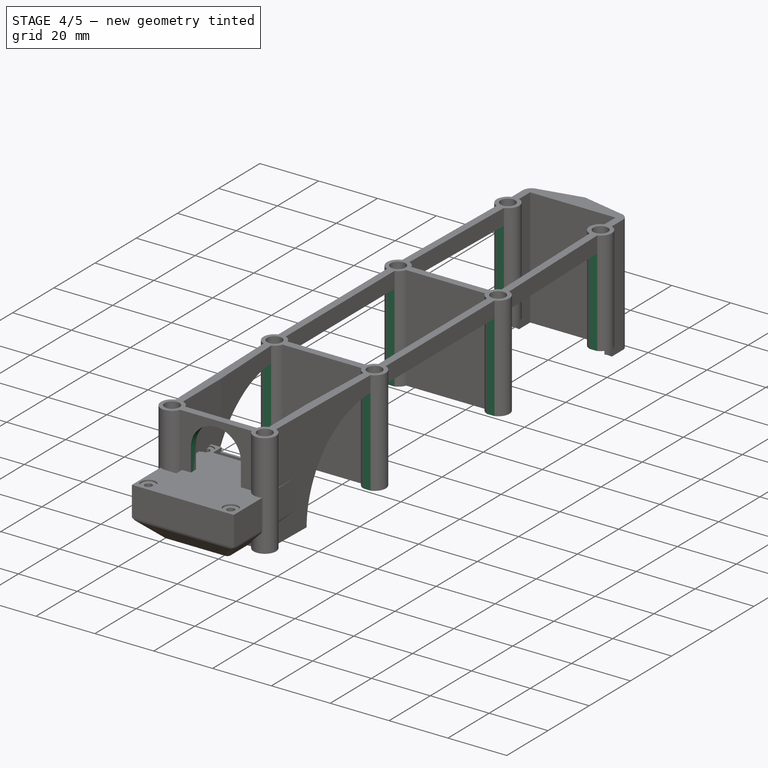
[diagram: stage 4 of 5 — iso view after this stage's code; geometry added in this stage tinted green]
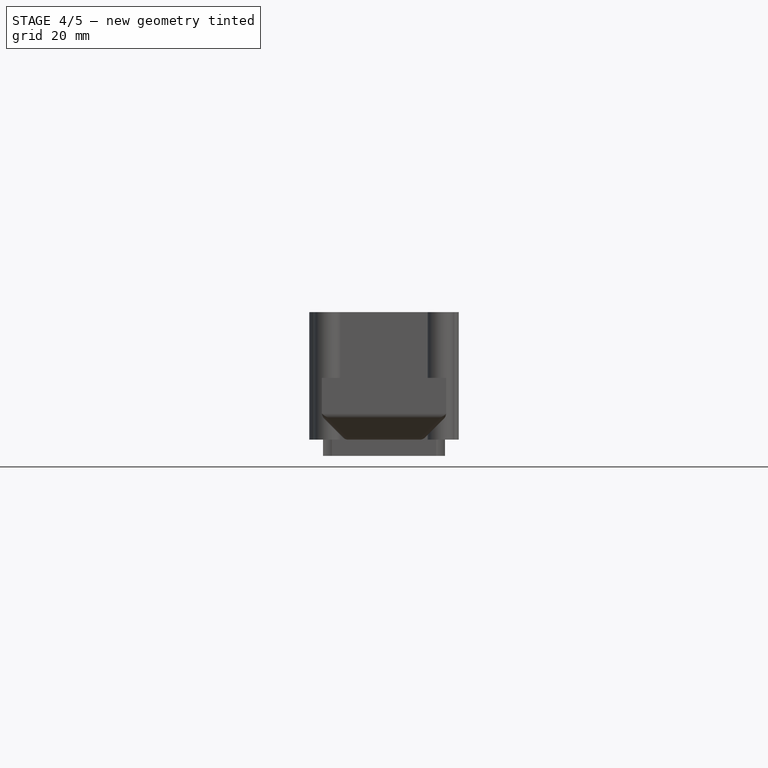
[diagram: stage 4 of 5 — front view after this stage's code; geometry added in this stage tinted green]
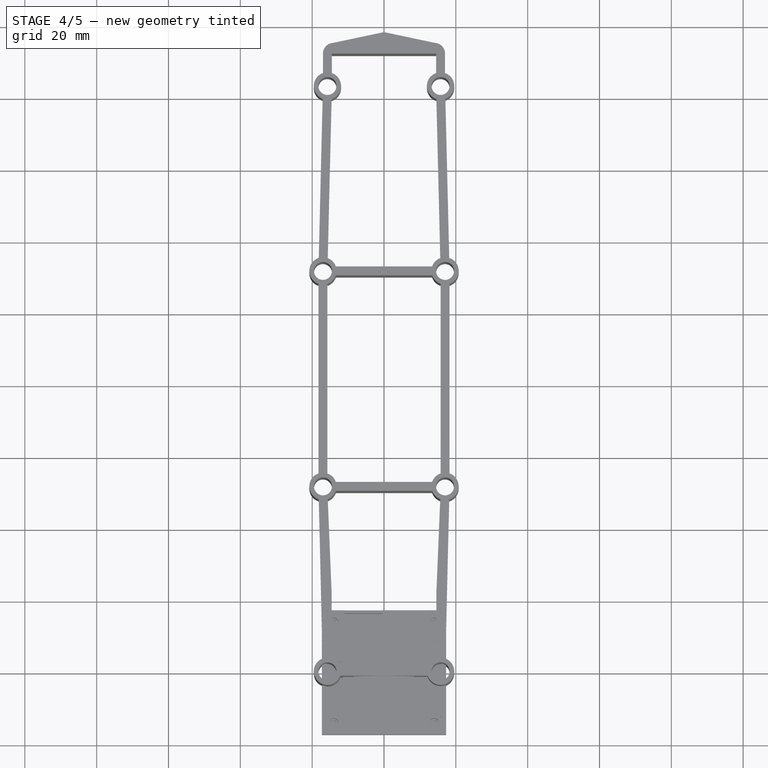
[diagram: stage 4 of 5 — top view after this stage's code; geometry added in this stage tinted green]
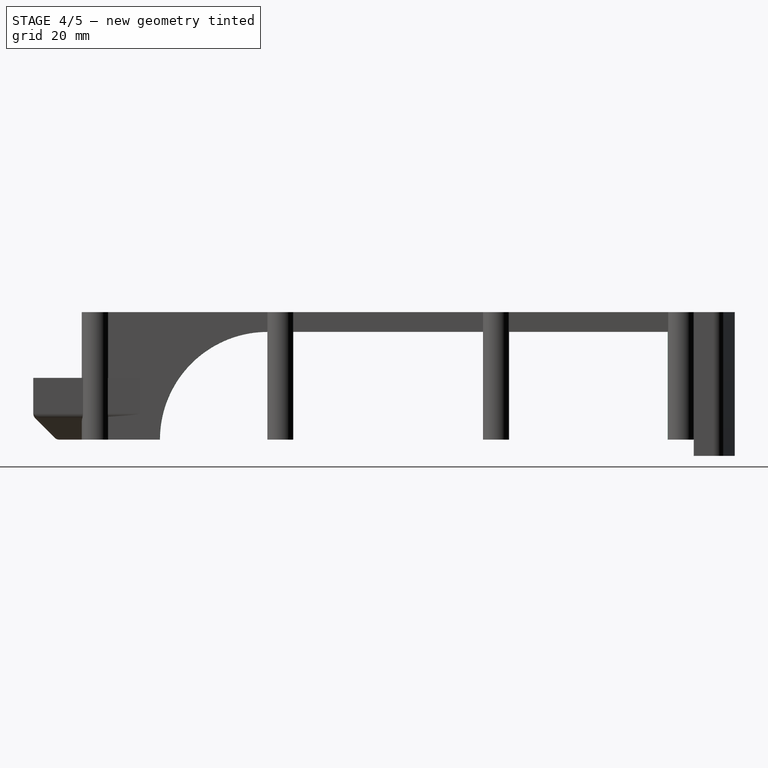
[diagram: stage 4 of 5 — right view after this stage's code; geometry added in this stage tinted green]
FEATURE [Sketcher::SketchObject] Sketch001  label="Sk: Right side front"
  Placement = pos=(16.9907,-0.412396,0) rot=(0.58669,0.572623,0.572623;2.08044rad)
  Support = -> Pad [Face10]
  sketch-geometry (3):
    g0: ArcOfCircle CenterX=48.3 CenterY=-8.7e-11 CenterZ=0 NormalX=0 NormalY=0 NormalZ=1 Radius=30 StartAngle=1.5708 EndAngle=3.14159
    g1: LineSegment StartX=48.3 StartY=30 StartZ=0 EndX=48.3 EndY=-8.7e-11 EndZ=0
    g2: LineSegment StartX=48.3 StartY=-8.7e-11 StartZ=0 EndX=18.3 EndY=-8.7e-11 EndZ=0
  constraints (9):
    c: PointOnObject(g0,g-1)
    c: Coincident(g1,g0)
    c: Coincident(g1,g0)
    c: Vertical(g1)
    c: Coincident(g2,g0)
    c: Coincident(g2,g0)
    c: Horizontal(g2)
    c: DistanceX(g-1,g0) = 18.3
    c: DistanceX(g0,g0) = -30
FEATURE [PartDesign::Pocket] Pocket  label="Right side front"
  Length = 5
  Sketch = -> Sketch001
  Type = 2
FEATURE [Sketcher::SketchObject] Sketch004  label="Sk: Left side front"
  Placement = pos=(-16.9907,-0.412396,0) rot=(0.58669,-0.572623,-0.572623;2.08044rad)
  Support = -> Pocket [Face32]
  sketch-geometry (3):
    g0: ArcOfCircle CenterX=-48.3 CenterY=0 CenterZ=0 NormalX=0 NormalY=0 NormalZ=1 Radius=30 StartAngle=0 EndAngle=1.5708
    g1: LineSegment StartX=-48.3 StartY=30 StartZ=0 EndX=-48.3 EndY=0 EndZ=0
    g2: LineSegment StartX=-48.3 StartY=0 StartZ=0 EndX=-18.3 EndY=0 EndZ=0
  constraints (9):
    c: PointOnObject(g0,g-1)
    c: Vertical(g1)
    c: Horizontal(g2)
    c: Coincident(g2,g0)
    c: Coincident(g2,g0)
    c: Coincident(g1,g0)
    c: Coincident(g1,g0)
    c: DistanceX(g-1,g0) = -18.3
    c: DistanceX(g0,g0) = 30
FEATURE [PartDesign::Pocket] Pocket003  label="Left side front"
  Length = 5
  Sketch = -> Sketch004
  Type = 2
FEATURE [Sketcher::SketchObject] Sketch005  label="Sk: Front side"
  Placement = pos=(0,1.25,0) rot=(0,0.707107,0.707107;3.14159rad)
  Support = -> Pocket003 [Face46]
  sketch-geometry (4):
    g0: ArcOfCircle CenterX=0 CenterY=11 CenterZ=0 NormalX=0 NormalY=0 NormalZ=1 Radius=8.5 StartAngle=3.14159 EndAngle=6.28319
    g1: ArcOfCircle CenterX=-5e-12 CenterY=25 CenterZ=0 NormalX=0 NormalY=0 NormalZ=1 Radius=8.5 StartAngle=0 EndAngle=3.14159
    g2: LineSegment StartX=8.5 StartY=11 StartZ=0 EndX=8.5 EndY=25 EndZ=0
    g3: LineSegment StartX=-8.5 StartY=11 StartZ=0 EndX=-8.5 EndY=25 EndZ=0
  constraints (10):
    c: Tangent(g0,g3) = 1.5708
    c: Tangent(g0,g2) = -1.5708
    c: Tangent(g2,g1) = -1.5708
    c: Tangent(g3,g1) = 1.5708
    c: Vertical(g2)
    c: Equal(g0,g1)
    c: PointOnObject(g0,g-2)
    c: DistanceY(g1,g0) = -14
    c: DistanceY(g-1,g0) = 11
    c: DistanceX(g0,g0) = -17
FEATURE [PartDesign::Pocket] Pocket004  label="Front side"
  Length = 5
  Sketch = -> Sketch005
  Type = 2
FEATURE [Sketcher::SketchObject] Sketch007  label="Sk: Right side mid"
  Placement = pos=(18.25,-1e-12,0) rot=(0.57735,0.57735,0.57735;2.0944rad)
  Support = -> Pocket004 [Face14]
  sketch-geometry (4):
    g0: LineSegment StartX=55.1 StartY=0 StartZ=0 EndX=107.9 EndY=0 EndZ=0
    g1: LineSegment StartX=107.9 StartY=0 StartZ=0 EndX=107.9 EndY=30 EndZ=0
    g2: LineSegment StartX=107.9 StartY=30 StartZ=0 EndX=55.1 EndY=30 EndZ=0
    g3: LineSegment StartX=55.1 StartY=30 StartZ=0 EndX=55.1 EndY=0 EndZ=0
  constraints (12):
    c: Coincident(g0,g1)
    c: Coincident(g1,g2)
    c: Coincident(g2,g3)
    c: Coincident(g3,g0)
    c: Horizontal(g0)
    c: Horizontal(g2)
    c: Vertical(g1)
    c: Vertical(g3)
    c: PointOnObject(g0,g-1)
    c: DistanceX(g-1,g0) = 55.1
    c: DistanceY(g2,g0) = -30
    c: DistanceX(g0,g0) = 52.8
FEATURE [PartDesign::Pocket] Pocket005  label="Right side mid"
  Length = 5
  Sketch = -> Sketch007
  Type = 2
FEATURE [Sketcher::SketchObject] Sketch008  label="Sk: Left side mid"
  Placement = pos=(-18.25,1e-12,0) rot=(-0.57735,0.57735,0.57735;4.18879rad)
  Support = -> Pocket005 [Face36]
  sketch-geometry (4):
    g0: LineSegment StartX=-107.9 StartY=0 StartZ=0 EndX=-55.1 EndY=0 EndZ=0
    g1: LineSegment StartX=-55.1 StartY=0 StartZ=0 EndX=-55.1 EndY=30 EndZ=0
    g2: LineSegment StartX=-55.1 StartY=30 StartZ=0 EndX=-107.9 EndY=30 EndZ=0
    g3: LineSegment StartX=-107.9 StartY=30 StartZ=0 EndX=-107.9 EndY=0 EndZ=0
  constraints (12):
    c: Coincident(g0,g1)
    c: Coincident(g1,g2)
    c: Coincident(g2,g3)
    c: Coincident(g3,g0)
    c: Horizontal(g0)
    c: Horizontal(g2)
    c: Vertical(g1)
    c: Vertical(g3)
    c: DistanceX(g-1,g0) = -55.1
    c: DistanceX(g0,g0) = 52.8
    c: DistanceY(g0,g1) = 30
    c: PointOnObject(g0,g-1)
FEATURE [PartDesign::Pocket] Pocket006  label="Left side mid"
  Length = 5
  Sketch = -> Sketch008
  Type = 2
FEATURE [Sketcher::SketchObject] Sketch009  label="Sk: Right side rear"
  Placement = pos=(20.9447,0.508367,0) rot=(0.56801,0.581964,0.581964;2.10846rad)
  Support = -> Pocket006 [Face12]
  sketch-geometry (4):
    g0: LineSegment StartX=114.7 StartY=0 StartZ=0 EndX=158.95 EndY=0 EndZ=0
    g1: LineSegment StartX=158.95 StartY=0 StartZ=0 EndX=158.95 EndY=30 EndZ=0
    g2: LineSegment StartX=158.95 StartY=30 StartZ=0 EndX=114.7 EndY=30 EndZ=0
    g3: LineSegment StartX=114.7 StartY=30 StartZ=0 EndX=114.7 EndY=0 EndZ=0
  constraints (12):
    c: Coincident(g0,g1)
    c: Coincident(g1,g2)
    c: Coincident(g2,g3)
    c: Coincident(g3,g0)
    c: Horizontal(g0)
    c: Horizontal(g2)
    c: Vertical(g1)
    c: Vertical(g3)
    c: PointOnObject(g0,g-1)
    c: DistanceY(g0,g2) = 30
    c: DistanceX(g-1,g0) = 114.7
    c: DistanceX(g0,g0) = 44.25
FEATURE [PartDesign::Pocket] Pocket007  label="Right side rear"
  Length = 5
  Sketch = -> Sketch009
  Type = 2
FEATURE [Sketcher::SketchObject] Sketch010  label="Sk: Left side rear"
  Placement = pos=(-20.9447,0.508367,0) rot=(-0.56801,0.581964,0.581964;4.17472rad)
  Support = -> Pocket007 [Face3]
  sketch-geometry (4):
    g0: LineSegment StartX=-114.7 StartY=0 StartZ=0 EndX=-158.95 EndY=0 EndZ=0
    g1: LineSegment StartX=-158.95 StartY=0 StartZ=0 EndX=-158.95 EndY=30 EndZ=0
    g2: LineSegment StartX=-158.95 StartY=30 StartZ=0 EndX=-114.7 EndY=30 EndZ=0
    g3: LineSegment StartX=-114.7 StartY=30 StartZ=0 EndX=-114.7 EndY=0 EndZ=0
  constraints (12):
    c: Coincident(g0,g1)
    c: Coincident(g1,g2)
    c: Coincident(g2,g3)
    c: Coincident(g3,g0)
    c: Horizontal(g0)
    c: Horizontal(g2)
    c: Vertical(g1)
    c: Vertical(g3)
    c: PointOnObject(g0,g-1)
    c: DistanceX(g-1,g0) = -114.7
    c: DistanceX(g0,g0) = -44.25
    c: DistanceY(g2,g0) = -30
FEATURE [PartDesign::Pocket] Pocket008  label="Left side rear"
  Length = 5
  Sketch = -> Sketch010
  Type = 2
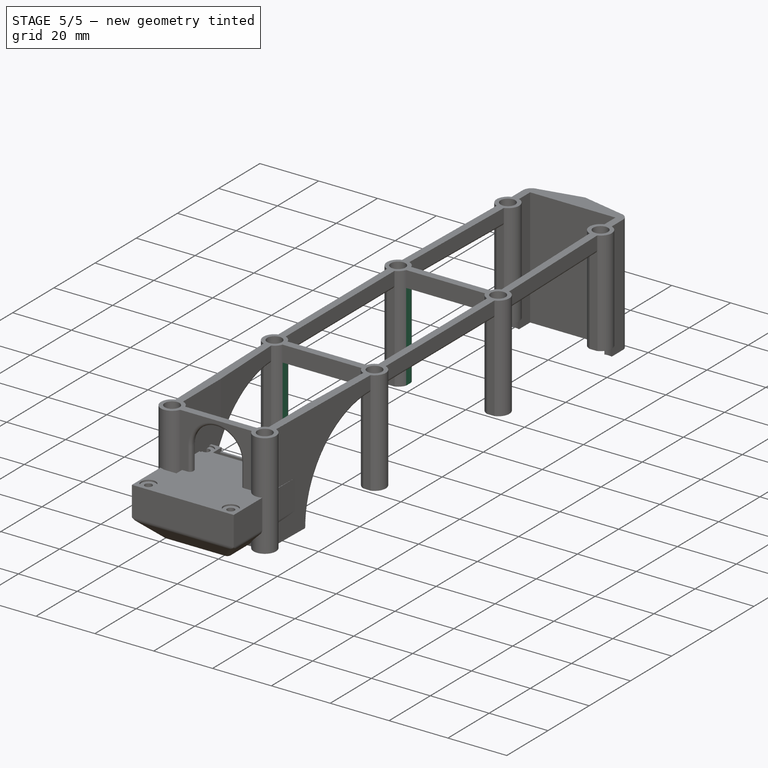
[diagram: stage 5 of 5 — iso view after this stage's code; geometry added in this stage tinted green]
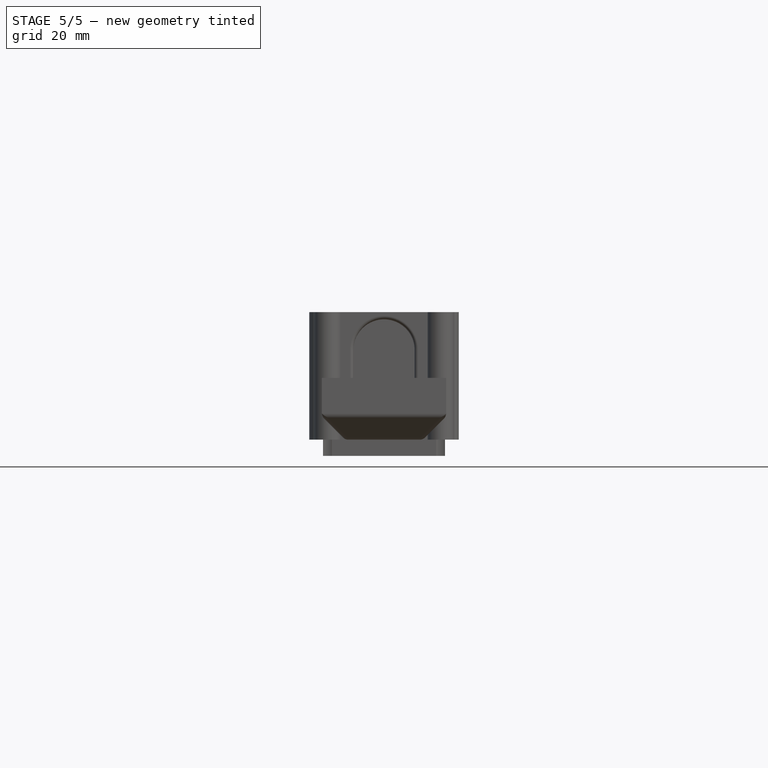
[diagram: stage 5 of 5 — front view after this stage's code; geometry added in this stage tinted green]
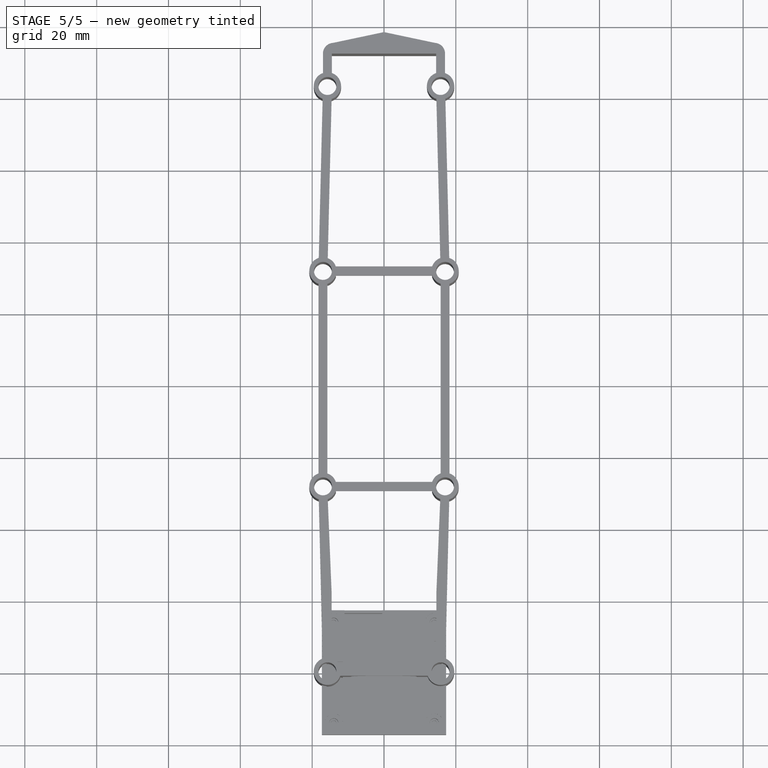
[diagram: stage 5 of 5 — top view after this stage's code; geometry added in this stage tinted green]
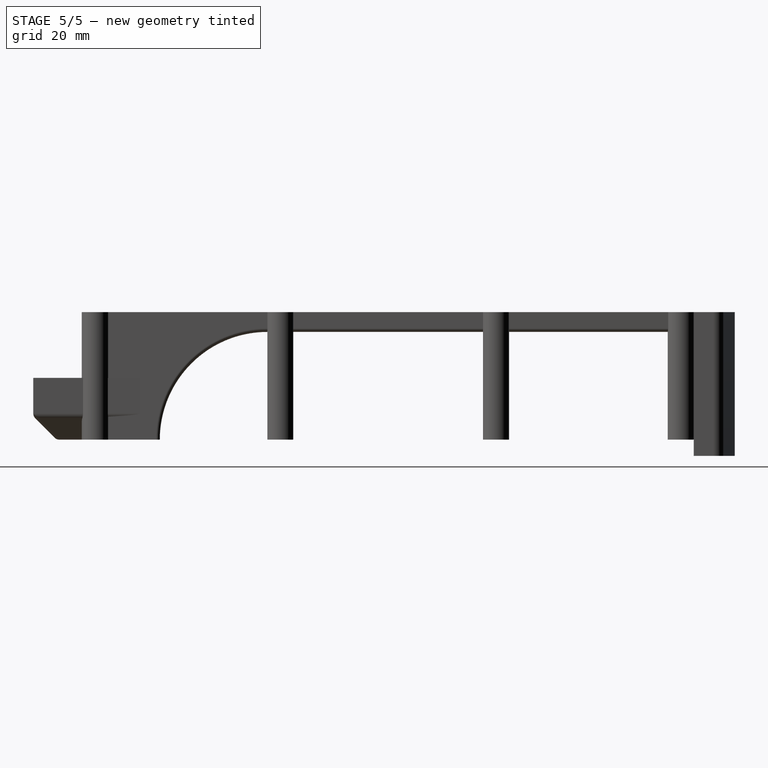
[diagram: stage 5 of 5 — right view after this stage's code; geometry added in this stage tinted green]
FEATURE [Sketcher::SketchObject] Sketch011  label="Sk: Inner side mid front"
  Placement = pos=(4e-12,50.25,0) rot=(1,0,0;1.5708rad)
  Support = -> Pocket008 [Face37]
  sketch-geometry (4):
    g0: LineSegment StartX=-13.4 StartY=0 StartZ=0 EndX=13.4 EndY=0 EndZ=0
    g1: LineSegment StartX=13.4 StartY=0 StartZ=0 EndX=13.4 EndY=30 EndZ=0
    g2: LineSegment StartX=13.4 StartY=30 StartZ=0 EndX=-13.4 EndY=30 EndZ=0
    g3: LineSegment StartX=-13.4 StartY=30 StartZ=0 EndX=-13.4 EndY=0 EndZ=0
  constraints (12):
    c: Coincident(g0,g1)
    c: Coincident(g1,g2)
    c: Coincident(g2,g3)
    c: Coincident(g3,g0)
    c: Horizontal(g0)
    c: Horizontal(g2)
    c: Vertical(g1)
    c: Vertical(g3)
    c: PointOnObject(g0,g-1)
    c: DistanceX(g0,g0) = 26.8
    c: DistanceY(g0,g1) = 30
    c: Symmetric(g0,g0,g-2)
FEATURE [PartDesign::Pocket] Pocket009  label="Inner side mid front"
  Length = 5
  Sketch = -> Sketch011
  Type = 2
FEATURE [Sketcher::SketchObject] Sketch012  label="Sk: Inner side mid rear"
  Placement = pos=(3e-12,112.75,0) rot=(0,0.707107,0.707107;3.14159rad)
  Support = -> Pocket009 [Face27]
  sketch-geometry (4):
    g0: LineSegment StartX=-13.4 StartY=0 StartZ=0 EndX=13.4 EndY=0 EndZ=0
    g1: LineSegment StartX=13.4 StartY=0 StartZ=0 EndX=13.4 EndY=30 EndZ=0
    g2: LineSegment StartX=13.4 StartY=30 StartZ=0 EndX=-13.4 EndY=30 EndZ=0
    g3: LineSegment StartX=-13.4 StartY=30 StartZ=0 EndX=-13.4 EndY=0 EndZ=0
  constraints (12):
    c: Coincident(g0,g1)
    c: Coincident(g1,g2)
    c: Coincident(g2,g3)
    c: Coincident(g3,g0)
    c: Horizontal(g0)
    c: Horizontal(g2)
    c: Vertical(g1)
    c: Vertical(g3)
    c: PointOnObject(g0,g-1)
    c: Symmetric(g0,g0,g-2)
    c: DistanceX(g0,g0) = 26.8
    c: DistanceY(g0,g1) = 30
FEATURE [PartDesign::Pocket] Pocket010  label="Inner side mid rear"
  Length = 5
  Sketch = -> Sketch012
  Type = 2
FEATURE [App::DocumentObjectGroup] Group001  label="Gr: Rear side"
  Group = -> [Pad001]
FEATURE [PartDesign::Fillet] Fillet  label="Fillet sides"
  Base = -> Pocket010 [Edge104,Edge179,Edge181,Edge112,Edge155,Edge120,Edge127,Edge7,Edge60,Edge141,Edge81,Edge199,Edge89,Edge194]
  Radius = 1
FEATURE [PartDesign::Fillet] Fillet001  label="Bare frame"
  Base = -> Fillet [Edge217,Edge132,Edge133,Edge218,Edge135,Edge220,Edge134,Edge219]
  Radius = 1
FEATURE [App::DocumentObjectGroup] Group  label="Gr: Framework with camera front"
  Group = -> [Pad,Pocket,Pocket003,Pocket004,Pocket005,Pocket006,Pocket007,Pocket008,Pocket009,Pocket010,Fillet,Fillet001]
FEATURE [Part::FeaturePython] Clone  label="Clone of Bare frame"  # Draft clone (typed FeaturePython)
  Objects = -> [Fillet001]
  Scale = (1,1,1)
FEATURE [Sketcher::SketchObject] Sketch016
  Placement = pos=(0,0,7.5) rot=(0,0,1;0rad)
  Support = -> Pocket011 [Face11]
  sketch-geometry (8):
    g0: LineSegment StartX=-8.65 StartY=8.65 StartZ=0 EndX=8.65 EndY=8.65 EndZ=0
    g1: LineSegment StartX=8.65 StartY=8.65 StartZ=0 EndX=8.65 EndY=2.45713 EndZ=0
    g2: LineSegment StartX=8.65 StartY=-8.65 StartZ=0 EndX=-8.65 EndY=-8.65 EndZ=0
    g3: LineSegment StartX=-8.65 StartY=-8.65 StartZ=0 EndX=-8.65 EndY=-2.45713 EndZ=0
    g4: ArcOfCircle CenterX=-9.5 CenterY=0 CenterZ=0 NormalX=0 NormalY=0 NormalZ=1 Radius=2.6 StartAngle=1.23775 EndAngle=5.04543
    g5: ArcOfCircle CenterX=9.5 CenterY=0 CenterZ=0 NormalX=0 NormalY=0 NormalZ=1 Radius=2.6 StartAngle=4.37934 EndAngle=8.18703
    g6: LineSegment StartX=8.65 StartY=-2.45713 StartZ=0 EndX=8.65 EndY=-8.65 EndZ=0
    g7: LineSegment StartX=-8.65 StartY=2.45713 StartZ=0 EndX=-8.65 EndY=8.65 EndZ=0
  constraints (24):
    c: Coincident(g0,g1)
    c: Coincident(g6,g2)
    c: Coincident(g2,g3)
    c: Coincident(g7,g0)
    c: Horizontal(g0)
    c: Horizontal(g2)
    c: Vertical(g1)
    c: Vertical(g3)
    c: Symmetric(g2,g6,g-2)
    c: DistanceX(g2,g6) = 17.3
    c: PointOnObject(g4,g-1)
    c: PointOnObject(g5,g-1)
    c: Symmetric(g4,g5,g-1)
    c: Radius(g4) = 2.6
    c: Equal(g4,g5)
    c: Tangent(g1,g6)
    c: Coincident(g5,g6)
    c: Coincident(g5,g1)
    c: Tangent(g3,g7)
    c: Coincident(g4,g3)
    c: DistanceY(g0,g2) = -17.3
    c: Equal(g1,g6)
    c: Coincident(g4,g7)
    c: DistanceX(g4,g5) = 19
FEATURE [Part::Fuse] Fusion
  Base = -> Clone
  Tool = -> Clone001
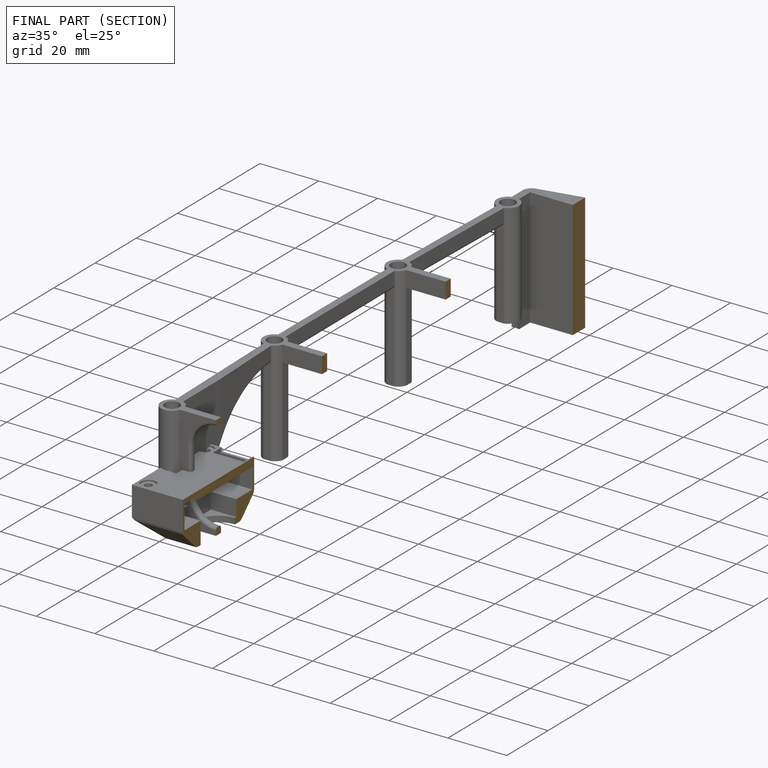
[diagram: finished part — half-section view (interior)]
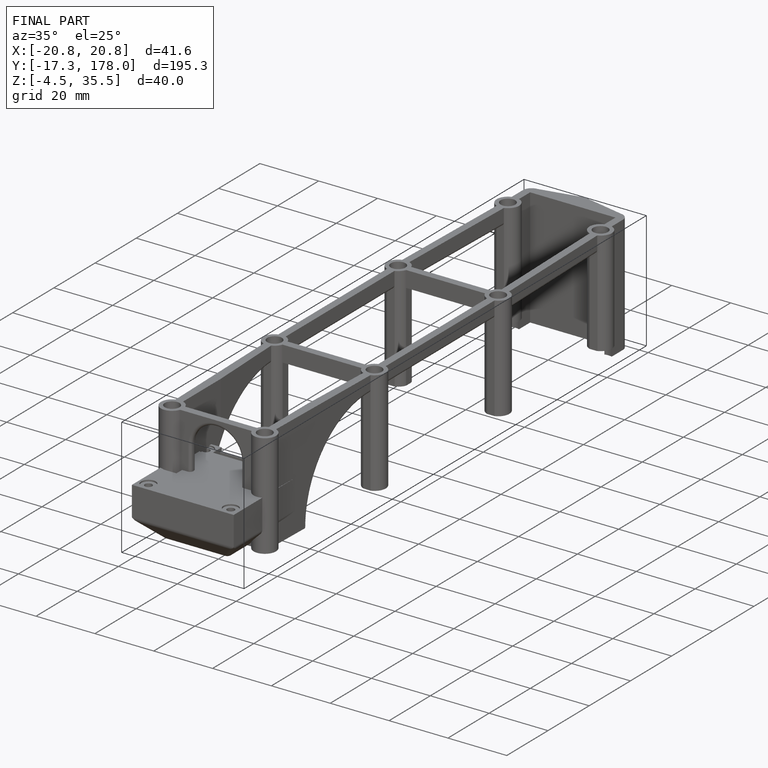
[diagram: finished part — iso view with bounding-box wireframe]
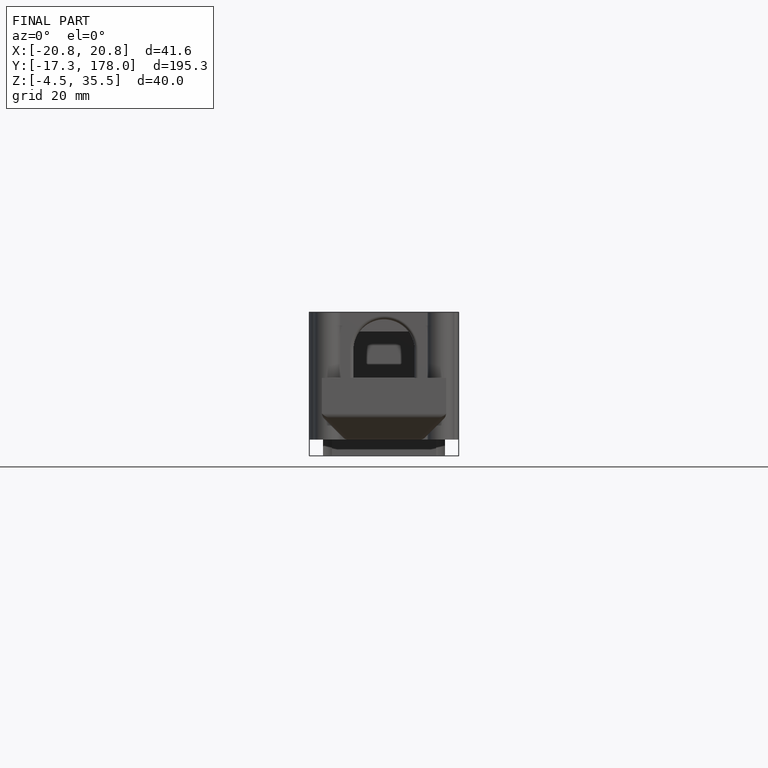
[diagram: finished part — front view with bounding-box wireframe]
